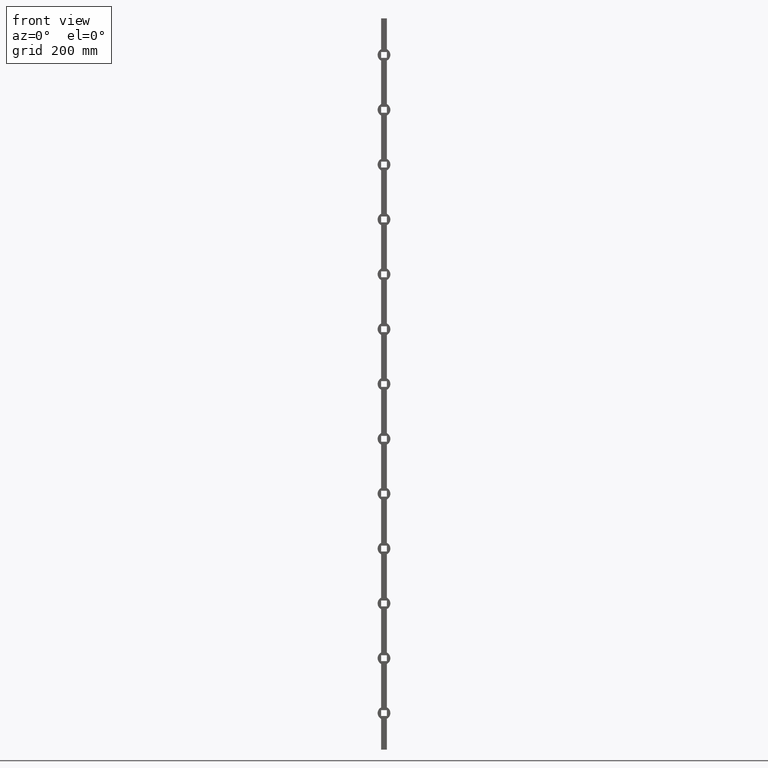
[diagram: clean part render]
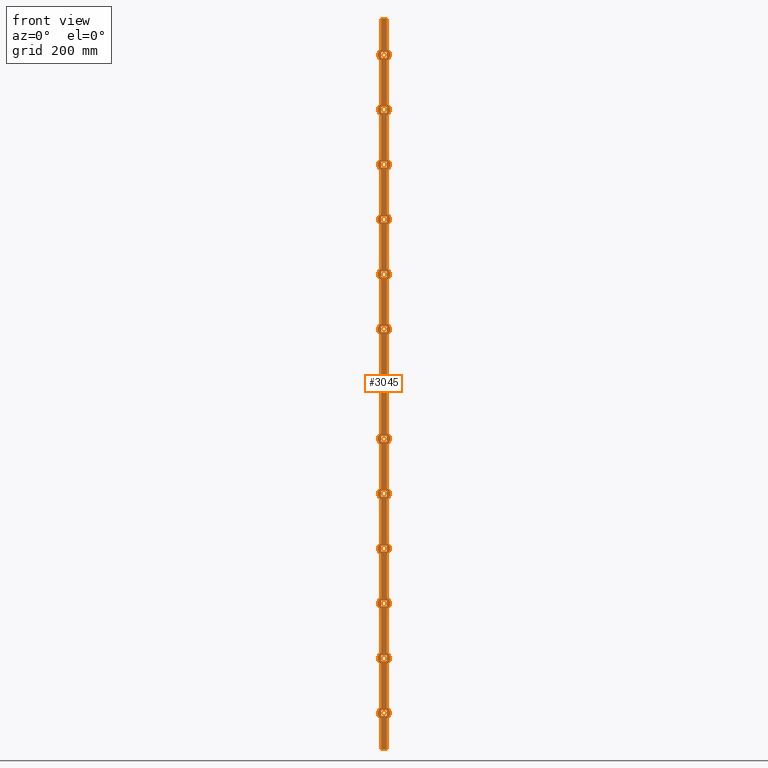
[diagram: same view with one face highlighted and labeled with its STEP entity id]
A machine part, front view. The second image highlights one B-rep face of the part: STEP entity #3045.
In plain terms, the highlighted planar face has unit normal (0, 1, 0).
Its self-contained STEP definition (entity closure, byte-faithful):
#4 = EDGE_CURVE ( 'NONE', #4546, #7853, #1683, .T. ) ;
#47 = ORIENTED_EDGE ( 'NONE', *, *, #12634, .T. ) ;
#59 = EDGE_CURVE ( 'NONE', #3899, #5017, #10373, .T. ) ;
#64 = DIRECTION ( 'NONE',  ( 1.084202172485503448E-16, 0.000000000000000000, 1.000000000000000000 ) ) ;
#71 = VERTEX_POINT ( 'NONE', #8379 ) ;
#90 = EDGE_CURVE ( 'NONE', #1544, #13463, #13175, .T. ) ;
#93 = CARTESIAN_POINT ( 'NONE',  ( -8.000000000000008882, -8.000000000000003553, 608.0000000000001137 ) ) ;
#96 = CARTESIAN_POINT ( 'NONE',  ( 0.000000000000000000, -8.000000000000000000, -299.9999999999999432 ) ) ;
#97 = CARTESIAN_POINT ( 'NONE',  ( 8.000000000000003553, -8.000000000000003553, -7.999999999999896083 ) ) ;
#101 = DIRECTION ( 'NONE',  ( 0.000000000000000000, 0.000000000000000000, 1.000000000000000000 ) ) ;
#132 = ORIENTED_EDGE ( 'NONE', *, *, #3472, .T. ) ;
#137 = CIRCLE ( 'NONE', #914, 17.49999999999996092 ) ;
#148 = VECTOR ( 'NONE', #13533, 1000.000000000000000 ) ;
#167 = CARTESIAN_POINT ( 'NONE',  ( 8.000000000000007105, -8.000000000000003553, -741.9999999999998863 ) ) ;
#214 = AXIS2_PLACEMENT_3D ( 'NONE', #10044, #12257, #8094 ) ;
#225 = ORIENTED_EDGE ( 'NONE', *, *, #11086, .T. ) ;
#227 = EDGE_CURVE ( 'NONE', #5780, #10781, #10048, .T. ) ;
#242 = EDGE_CURVE ( 'NONE', #8406, #5963, #7232, .T. ) ;
#244 = CARTESIAN_POINT ( 'NONE',  ( 8.000000000000003553, -8.000000000000003553, 592.0000000000001137 ) ) ;
#251 = CARTESIAN_POINT ( 'NONE',  ( -8.000000000000010658, -8.000000000000003553, -7.999999999999896083 ) ) ;
#284 = VECTOR ( 'NONE', #4076, 1000.000000000000000 ) ;
#296 = CARTESIAN_POINT ( 'NONE',  ( 8.000000000000007105, -8.000000000000003553, 308.0000000000000568 ) ) ;
#304 = ORIENTED_EDGE ( 'NONE', *, *, #4780, .T. ) ;
#319 = EDGE_CURVE ( 'NONE', #6344, #12328, #9376, .T. ) ;
#328 = LINE ( 'NONE', #97, #7367 ) ;
#345 = CARTESIAN_POINT ( 'NONE',  ( -7.999999999999998224, -8.000000000000003553, 1000.000000000000000 ) ) ;
#360 = EDGE_CURVE ( 'NONE', #8766, #7352, #6915, .T. ) ;
#366 = VERTEX_POINT ( 'NONE', #8157 ) ;
#404 = ORIENTED_EDGE ( 'NONE', *, *, #6013, .F. ) ;
#426 = AXIS2_PLACEMENT_3D ( 'NONE', #9715, #1323, #8682 ) ;
#428 = VERTEX_POINT ( 'NONE', #11340 ) ;
#446 = CARTESIAN_POINT ( 'NONE',  ( -7.999999999999998224, -8.000000000000003553, 884.4356175837266392 ) ) ;
#461 = EDGE_CURVE ( 'NONE', #7881, #2728, #11826, .T. ) ;
#471 = AXIS2_PLACEMENT_3D ( 'NONE', #12557, #9363, #3188 ) ;
#474 = LINE ( 'NONE', #7366, #6390 ) ;
#476 = CARTESIAN_POINT ( 'NONE',  ( 8.000000000000000000, -8.000000000000003553, 765.5643824162733608 ) ) ;
#484 = VECTOR ( 'NONE', #4175, 1000.000000000000000 ) ;
#490 = FACE_BOUND ( 'NONE', #11643, .T. ) ;
#492 = CARTESIAN_POINT ( 'NONE',  ( -7.999999999999998224, -8.000000000000003553, 1000.000000000000000 ) ) ;
#496 = AXIS2_PLACEMENT_3D ( 'NONE', #5354, #2179, #12843 ) ;
#518 = EDGE_CURVE ( 'NONE', #11570, #13429, #1005, .T. ) ;
#521 = LINE ( 'NONE', #3277, #13491 ) ;
#527 = CARTESIAN_POINT ( 'NONE',  ( -8.000000000000010658, -8.000000000000003553, 292.0000000000000568 ) ) ;
#529 = VECTOR ( 'NONE', #9278, 1000.000000000000000 ) ;
#559 = DIRECTION ( 'NONE',  ( 1.000000000000000000, 0.000000000000000000, 0.000000000000000000 ) ) ;
#561 = ORIENTED_EDGE ( 'NONE', *, *, #9138, .T. ) ;
#575 = VERTEX_POINT ( 'NONE', #11511 ) ;
#576 = AXIS2_PLACEMENT_3D ( 'NONE', #96, #2059, #10582 ) ;
#585 = VERTEX_POINT ( 'NONE', #7327 ) ;
#587 = EDGE_CURVE ( 'NONE', #5646, #9602, #11350, .T. ) ;
#593 = DIRECTION ( 'NONE',  ( 0.000000000000000000, 1.000000000000000000, 0.000000000000000000 ) ) ;
#594 = VECTOR ( 'NONE', #2310, 1000.000000000000000 ) ;
#605 = EDGE_CURVE ( 'NONE', #4275, #1284, #5806, .T. ) ;
#622 = CIRCLE ( 'NONE', #8818, 17.50000000000000711 ) ;
#623 = VERTEX_POINT ( 'NONE', #4414 ) ;
#624 = EDGE_LOOP ( 'NONE', ( #3945, #10036, #10308, #12221 ) ) ;
#645 = DIRECTION ( 'NONE',  ( 1.084202172485503448E-16, 0.000000000000000000, 1.000000000000000000 ) ) ;
#653 = VERTEX_POINT ( 'NONE', #167 ) ;
#656 = VECTOR ( 'NONE', #12724, 1000.000000000000000 ) ;
#717 = VERTEX_POINT ( 'NONE', #6470 ) ;
#749 = ORIENTED_EDGE ( 'NONE', *, *, #1616, .T. ) ;
#756 = CARTESIAN_POINT ( 'NONE',  ( -8.000000000000010658, -8.000000000000003553, 742.0000000000000000 ) ) ;
#759 = ORIENTED_EDGE ( 'NONE', *, *, #12678, .F. ) ;
#764 = CIRCLE ( 'NONE', #3390, 17.50000000000001421 ) ;
#776 = VECTOR ( 'NONE', #2389, 1000.000000000000000 ) ;
#801 = DIRECTION ( 'NONE',  ( 0.000000000000000000, 1.000000000000000000, 0.000000000000000000 ) ) ;
#814 = CIRCLE ( 'NONE', #9983, 17.50000000000000711 ) ;
#827 = EDGE_CURVE ( 'NONE', #7853, #12653, #11995, .T. ) ;
#834 = VERTEX_POINT ( 'NONE', #1425 ) ;
#840 = AXIS2_PLACEMENT_3D ( 'NONE', #2917, #9242, #8307 ) ;
#845 = CARTESIAN_POINT ( 'NONE',  ( -7.999999999999998224, -8.000000000000003553, 1000.000000000000000 ) ) ;
#849 = CARTESIAN_POINT ( 'NONE',  ( 8.000000000000000000, -8.000000000000003553, 1000.000000000000000 ) ) ;
#858 = CARTESIAN_POINT ( 'NONE',  ( -8.000000000000039080, -8.000000000000000000, 615.5643824162734745 ) ) ;
#861 = VERTEX_POINT ( 'NONE', #10865 ) ;
#877 = ORIENTED_EDGE ( 'NONE', *, *, #8591, .T. ) ;
#879 = DIRECTION ( 'NONE',  ( 0.000000000000000000, 0.000000000000000000, 1.000000000000000000 ) ) ;
#880 = DIRECTION ( 'NONE',  ( 1.084202172485503448E-16, 0.000000000000000000, 1.000000000000000000 ) ) ;
#914 = AXIS2_PLACEMENT_3D ( 'NONE', #3773, #593, #2626 ) ;
#918 = CARTESIAN_POINT ( 'NONE',  ( -8.000000000000010658, -8.000000000000003553, -608.0000000000000000 ) ) ;
#942 = CARTESIAN_POINT ( 'NONE',  ( -8.000000000000010658, -8.000000000000003553, -907.9999999999997726 ) ) ;
#955 = CARTESIAN_POINT ( 'NONE',  ( 8.000000000000040856, -8.000000000000000000, 584.4356175837267529 ) ) ;
#970 = LINE ( 'NONE', #4511, #7860 ) ;
#979 = VECTOR ( 'NONE', #3177, 1000.000000000000000 ) ;
#982 = VECTOR ( 'NONE', #6081, 1000.000000000000000 ) ;
#1005 = CIRCLE ( 'NONE', #471, 17.50000000000001421 ) ;
#1007 = CARTESIAN_POINT ( 'NONE',  ( 8.000000000000007105, -8.000000000000003553, 8.000000000000117240 ) ) ;
#1008 = ORIENTED_EDGE ( 'NONE', *, *, #10295, .T. ) ;
#1010 = DIRECTION ( 'NONE',  ( 1.084202172485503448E-16, 0.000000000000000000, 1.000000000000000000 ) ) ;
#1036 = ORIENTED_EDGE ( 'NONE', *, *, #4881, .T. ) ;
#1071 = EDGE_CURVE ( 'NONE', #4468, #12454, #8867, .T. ) ;
#1147 = LINE ( 'NONE', #9656, #3614 ) ;
#1161 = CARTESIAN_POINT ( 'NONE',  ( 8.000000000000003553, -8.000000000000003553, -158.0000000000000284 ) ) ;
#1162 = VECTOR ( 'NONE', #9220, 1000.000000000000000 ) ;
#1168 = EDGE_CURVE ( 'NONE', #12440, #653, #1326, .T. ) ;
#1186 = CIRCLE ( 'NONE', #1909, 17.50000000000001421 ) ;
#1192 = DIRECTION ( 'NONE',  ( -0.000000000000000000, -0.000000000000000000, -1.000000000000000000 ) ) ;
#1196 = VERTEX_POINT ( 'NONE', #8545 ) ;
#1221 = DIRECTION ( 'NONE',  ( -0.000000000000000000, -0.000000000000000000, -1.000000000000000000 ) ) ;
#1234 = DIRECTION ( 'NONE',  ( -1.000000000000000000, -0.000000000000000000, -0.000000000000000000 ) ) ;
#1277 = AXIS2_PLACEMENT_3D ( 'NONE', #2498, #1571, #3687 ) ;
#1284 = VERTEX_POINT ( 'NONE', #6666 ) ;
#1287 = DIRECTION ( 'NONE',  ( -0.000000000000000000, -0.000000000000000000, -1.000000000000000000 ) ) ;
#1294 = ORIENTED_EDGE ( 'NONE', *, *, #11879, .T. ) ;
#1298 = EDGE_CURVE ( 'NONE', #7740, #9736, #3459, .T. ) ;
#1305 = DIRECTION ( 'NONE',  ( -0.000000000000000000, -0.000000000000000000, -1.000000000000000000 ) ) ;
#1323 = DIRECTION ( 'NONE',  ( 0.000000000000000000, 1.000000000000000000, 0.000000000000000000 ) ) ;
#1326 = LINE ( 'NONE', #8311, #484 ) ;
#1327 = ORIENTED_EDGE ( 'NONE', *, *, #4901, .F. ) ;
#1335 = DIRECTION ( 'NONE',  ( 0.000000000000000000, 0.000000000000000000, 1.000000000000000000 ) ) ;
#1340 = CARTESIAN_POINT ( 'NONE',  ( -8.000000000000010658, -8.000000000000003553, -158.0000000000000284 ) ) ;
#1347 = DIRECTION ( 'NONE',  ( 1.000000000000000000, 0.000000000000000000, 0.000000000000000000 ) ) ;
#1354 = EDGE_CURVE ( 'NONE', #5743, #7881, #4128, .T. ) ;
#1361 = CARTESIAN_POINT ( 'NONE',  ( 8.000000000000007105, -8.000000000000003553, 608.0000000000001137 ) ) ;
#1381 = CARTESIAN_POINT ( 'NONE',  ( 0.000000000000000000, -8.000000000000000000, 300.0000000000000568 ) ) ;
#1423 = VERTEX_POINT ( 'NONE', #11304 ) ;
#1425 = CARTESIAN_POINT ( 'NONE',  ( -8.000000000000010658, -8.000000000000003553, -457.9999999999997158 ) ) ;
#1431 = CARTESIAN_POINT ( 'NONE',  ( -7.999999999999998224, -8.000000000000003553, -615.5643824162733608 ) ) ;
#1446 = EDGE_CURVE ( 'NONE', #1959, #10694, #814, .T. ) ;
#1458 = LINE ( 'NONE', #2191, #8820 ) ;
#1477 = LINE ( 'NONE', #845, #982 ) ;
#1480 = LINE ( 'NONE', #4094, #9513 ) ;
#1484 = LINE ( 'NONE', #7444, #8034 ) ;
#1544 = VERTEX_POINT ( 'NONE', #3020 ) ;
#1563 = CARTESIAN_POINT ( 'NONE',  ( 8.000000000000000000, -8.000000000000003553, 465.5643824162734745 ) ) ;
#1564 = ORIENTED_EDGE ( 'NONE', *, *, #13181, .T. ) ;
#1571 = DIRECTION ( 'NONE',  ( 0.000000000000000000, 1.000000000000000000, 0.000000000000000000 ) ) ;
#1578 = ORIENTED_EDGE ( 'NONE', *, *, #4616, .T. ) ;
#1616 = EDGE_CURVE ( 'NONE', #5017, #1544, #1484, .T. ) ;
#1624 = CARTESIAN_POINT ( 'NONE',  ( -8.000000000000008882, -8.000000000000003553, -592.0000000000000000 ) ) ;
#1683 = LINE ( 'NONE', #4004, #3330 ) ;
#1714 = EDGE_CURVE ( 'NONE', #585, #13283, #11793, .T. ) ;
#1718 = CARTESIAN_POINT ( 'NONE',  ( -8.000000000000008882, -8.000000000000003553, 908.0000000000000000 ) ) ;
#1743 = CARTESIAN_POINT ( 'NONE',  ( 8.000000000000003553, -8.000000000000003553, 142.0000000000000284 ) ) ;
#1762 = EDGE_CURVE ( 'NONE', #10790, #12924, #2299, .T. ) ;
#1809 = LINE ( 'NONE', #11059, #7524 ) ;
#1822 = DIRECTION ( 'NONE',  ( -0.000000000000000000, -0.000000000000000000, -1.000000000000000000 ) ) ;
#1827 = LINE ( 'NONE', #5027, #6739 ) ;
#1830 = ORIENTED_EDGE ( 'NONE', *, *, #1168, .T. ) ;
#1844 = VERTEX_POINT ( 'NONE', #2307 ) ;
#1849 = EDGE_CURVE ( 'NONE', #575, #7355, #13615, .T. ) ;
#1854 = EDGE_CURVE ( 'NONE', #3124, #11424, #970, .T. ) ;
#1855 = VECTOR ( 'NONE', #3325, 1000.000000000000000 ) ;
#1857 = CARTESIAN_POINT ( 'NONE',  ( -7.999999999999998224, -8.000000000000003553, 1000.000000000000000 ) ) ;
#1873 = ORIENTED_EDGE ( 'NONE', *, *, #7184, .F. ) ;
#1909 = AXIS2_PLACEMENT_3D ( 'NONE', #11222, #801, #1911 ) ;
#1911 = DIRECTION ( 'NONE',  ( 0.000000000000000000, 0.000000000000000000, 1.000000000000000000 ) ) ;
#1920 = VECTOR ( 'NONE', #10770, 1000.000000000000000 ) ;
#1923 = DIRECTION ( 'NONE',  ( 0.000000000000000000, 0.000000000000000000, 1.000000000000000000 ) ) ;
#1934 = DIRECTION ( 'NONE',  ( 0.000000000000000000, 1.000000000000000000, 0.000000000000000000 ) ) ;
#1948 = ORIENTED_EDGE ( 'NONE', *, *, #13368, .T. ) ;
#1959 = VERTEX_POINT ( 'NONE', #4811 ) ;
#1962 = CARTESIAN_POINT ( 'NONE',  ( -7.999999999999998224, -8.000000000000003553, 1000.000000000000000 ) ) ;
#1965 = CARTESIAN_POINT ( 'NONE',  ( -8.000000000000008882, -8.000000000000003553, 458.0000000000000568 ) ) ;
#2005 = DIRECTION ( 'NONE',  ( 0.000000000000000000, 1.000000000000000000, 0.000000000000000000 ) ) ;
#2016 = DIRECTION ( 'NONE',  ( -0.000000000000000000, -0.000000000000000000, -1.000000000000000000 ) ) ;
#2030 = CARTESIAN_POINT ( 'NONE',  ( -8.000000000000010658, -8.000000000000003553, 292.0000000000000568 ) ) ;
#2053 = EDGE_CURVE ( 'NONE', #11823, #4468, #11961, .T. ) ;
#2059 = DIRECTION ( 'NONE',  ( 0.000000000000000000, 1.000000000000000000, 0.000000000000000000 ) ) ;
#2094 = ORIENTED_EDGE ( 'NONE', *, *, #461, .F. ) ;
#2102 = VERTEX_POINT ( 'NONE', #9599 ) ;
#2118 = DIRECTION ( 'NONE',  ( -0.000000000000000000, -0.000000000000000000, -1.000000000000000000 ) ) ;
#2138 = VECTOR ( 'NONE', #3660, 1000.000000000000000 ) ;
#2146 = CARTESIAN_POINT ( 'NONE',  ( 8.000000000000003553, -8.000000000000003553, -608.0000000000000000 ) ) ;
#2150 = FACE_BOUND ( 'NONE', #624, .T. ) ;
#2174 = VERTEX_POINT ( 'NONE', #3275 ) ;
#2179 = DIRECTION ( 'NONE',  ( 0.000000000000000000, 1.000000000000000000, 0.000000000000000000 ) ) ;
#2190 = ORIENTED_EDGE ( 'NONE', *, *, #8418, .F. ) ;
#2191 = CARTESIAN_POINT ( 'NONE',  ( -8.000000000000010658, -8.000000000000003553, -608.0000000000000000 ) ) ;
#2211 = CARTESIAN_POINT ( 'NONE',  ( 0.000000000000000000, -8.000000000000000000, 600.0000000000001137 ) ) ;
#2220 = CARTESIAN_POINT ( 'NONE',  ( 8.000000000000003553, -8.000000000000003553, -7.999999999999896083 ) ) ;
#2230 = ORIENTED_EDGE ( 'NONE', *, *, #8002, .F. ) ;
#2262 = DIRECTION ( 'NONE',  ( 0.000000000000000000, 1.000000000000000000, 0.000000000000000000 ) ) ;
#2271 = ORIENTED_EDGE ( 'NONE', *, *, #4326, .T. ) ;
#2284 = CARTESIAN_POINT ( 'NONE',  ( 8.000000000000003553, -8.000000000000003553, 892.0000000000000000 ) ) ;
#2299 = LINE ( 'NONE', #3265, #10649 ) ;
#2307 = CARTESIAN_POINT ( 'NONE',  ( 8.000000000000000000, -8.000000000000003553, 15.56438241627350116 ) ) ;
#2310 = DIRECTION ( 'NONE',  ( -0.000000000000000000, -0.000000000000000000, -1.000000000000000000 ) ) ;
#2327 = LINE ( 'NONE', #3655, #4463 ) ;
#2332 = DIRECTION ( 'NONE',  ( -0.000000000000000000, -0.000000000000000000, -1.000000000000000000 ) ) ;
#2373 = CARTESIAN_POINT ( 'NONE',  ( 8.000000000000000000, -8.000000000000003553, 1000.000000000000000 ) ) ;
#2380 = DIRECTION ( 'NONE',  ( 0.000000000000000000, 0.000000000000000000, 1.000000000000000000 ) ) ;
#2386 = CARTESIAN_POINT ( 'NONE',  ( -7.999999999999998224, -8.000000000000003553, 134.4356175837266392 ) ) ;
#2389 = DIRECTION ( 'NONE',  ( -1.000000000000000000, -0.000000000000000000, -0.000000000000000000 ) ) ;
#2424 = ORIENTED_EDGE ( 'NONE', *, *, #13453, .F. ) ;
#2459 = ORIENTED_EDGE ( 'NONE', *, *, #10103, .F. ) ;
#2462 = EDGE_CURVE ( 'NONE', #4911, #7740, #11532, .T. ) ;
#2473 = AXIS2_PLACEMENT_3D ( 'NONE', #11217, #9099, #6854 ) ;
#2477 = FACE_BOUND ( 'NONE', #5171, .T. ) ;
#2498 = CARTESIAN_POINT ( 'NONE',  ( 0.000000000000000000, -8.000000000000000000, -600.0000000000000000 ) ) ;
#2500 = VECTOR ( 'NONE', #10075, 1000.000000000000000 ) ;
#2512 = EDGE_CURVE ( 'NONE', #9758, #6344, #12350, .T. ) ;
#2557 = VERTEX_POINT ( 'NONE', #12993 ) ;
#2580 = CIRCLE ( 'NONE', #6198, 17.49999999999996092 ) ;
#2583 = VERTEX_POINT ( 'NONE', #1857 ) ;
#2593 = CARTESIAN_POINT ( 'NONE',  ( -7.999999999999998224, -8.000000000000003553, -915.5643824162731335 ) ) ;
#2626 = DIRECTION ( 'NONE',  ( 0.000000000000000000, 0.000000000000000000, 1.000000000000000000 ) ) ;
#2628 = VERTEX_POINT ( 'NONE', #6069 ) ;
#2641 = VECTOR ( 'NONE', #559, 1000.000000000000000 ) ;
#2642 = ORIENTED_EDGE ( 'NONE', *, *, #8188, .T. ) ;
#2648 = DIRECTION ( 'NONE',  ( -0.000000000000000000, -0.000000000000000000, -1.000000000000000000 ) ) ;
#2654 = VECTOR ( 'NONE', #8302, 1000.000000000000000 ) ;
#2670 = DIRECTION ( 'NONE',  ( -2.168404344971006896E-16, -0.000000000000000000, -1.000000000000000000 ) ) ;
#2728 = VERTEX_POINT ( 'NONE', #5202 ) ;
#2731 = CARTESIAN_POINT ( 'NONE',  ( 0.000000000000000000, -8.000000000000000000, -150.0000000000000284 ) ) ;
#2734 = VERTEX_POINT ( 'NONE', #6079 ) ;
#2767 = DIRECTION ( 'NONE',  ( -1.000000000000000000, -0.000000000000000000, -0.000000000000000000 ) ) ;
#2776 = VERTEX_POINT ( 'NONE', #13376 ) ;
#2799 = LINE ( 'NONE', #12765, #8684 ) ;
#2815 = VECTOR ( 'NONE', #4502, 1000.000000000000000 ) ;
#2838 = VERTEX_POINT ( 'NONE', #6979 ) ;
#2871 = CARTESIAN_POINT ( 'NONE',  ( 8.000000000000007105, -8.000000000000003553, -441.9999999999998295 ) ) ;
#2879 = CARTESIAN_POINT ( 'NONE',  ( 7.999999999999998224, -8.000000000000000000, -165.5643824162734177 ) ) ;
#2880 = DIRECTION ( 'NONE',  ( 0.000000000000000000, 0.000000000000000000, 1.000000000000000000 ) ) ;
#2894 = DIRECTION ( 'NONE',  ( -1.000000000000000000, -0.000000000000000000, -0.000000000000000000 ) ) ;
#2907 = ORIENTED_EDGE ( 'NONE', *, *, #6506, .T. ) ;
#2917 = CARTESIAN_POINT ( 'NONE',  ( 0.000000000000000000, -8.000000000000000000, -749.9999999999998863 ) ) ;
#2930 = EDGE_CURVE ( 'NONE', #861, #12472, #9522, .T. ) ;
#2933 = CARTESIAN_POINT ( 'NONE',  ( -8.000000000000010658, -8.000000000000003553, -307.9999999999999432 ) ) ;
#2949 = DIRECTION ( 'NONE',  ( 0.000000000000000000, 0.000000000000000000, 1.000000000000000000 ) ) ;
#2971 = CIRCLE ( 'NONE', #426, 17.49999999999996092 ) ;
#2984 = VECTOR ( 'NONE', #2118, 1000.000000000000000 ) ;
#2988 = CARTESIAN_POINT ( 'NONE',  ( 0.000000000000000000, -8.000000000000000000, 900.0000000000000000 ) ) ;
#2994 = EDGE_CURVE ( 'NONE', #7355, #4058, #12475, .T. ) ;
#3020 = CARTESIAN_POINT ( 'NONE',  ( 8.000000000000007105, -8.000000000000003553, -291.9999999999999432 ) ) ;
#3024 = CARTESIAN_POINT ( 'NONE',  ( 8.000000000000003553, -8.000000000000003553, -757.9999999999998863 ) ) ;
#3045 = ADVANCED_FACE ( 'NONE', ( #6085, #7056, #10831, #11640, #2150, #8858, #2477, #10507, #490, #7698, #4963, #11318, #8520, #5778 ), #10561, .F. ) ;
#3049 = CARTESIAN_POINT ( 'NONE',  ( -7.999999999999998224, -8.000000000000003553, -765.5643824162732471 ) ) ;
#3101 = VECTOR ( 'NONE', #8098, 1000.000000000000000 ) ;
#3102 = CARTESIAN_POINT ( 'NONE',  ( -7.999999999999998224, -8.000000000000003553, 1000.000000000000000 ) ) ;
#3107 = CARTESIAN_POINT ( 'NONE',  ( 8.000000000000000000, -8.000000000000003553, 1000.000000000000000 ) ) ;
#3123 = EDGE_CURVE ( 'NONE', #1423, #861, #137, .T. ) ;
#3124 = VERTEX_POINT ( 'NONE', #1431 ) ;
#3137 = LINE ( 'NONE', #9776, #10509 ) ;
#3172 = ORIENTED_EDGE ( 'NONE', *, *, #8703, .T. ) ;
#3177 = DIRECTION ( 'NONE',  ( -0.000000000000000000, -0.000000000000000000, -1.000000000000000000 ) ) ;
#3188 = DIRECTION ( 'NONE',  ( 0.000000000000000000, 0.000000000000000000, 1.000000000000000000 ) ) ;
#3197 = EDGE_CURVE ( 'NONE', #4564, #5810, #1809, .T. ) ;
#3211 = CARTESIAN_POINT ( 'NONE',  ( 8.000000000000000000, -8.000000000000003553, 1000.000000000000000 ) ) ;
#3239 = CARTESIAN_POINT ( 'NONE',  ( -7.999999999999998224, -8.000000000000000000, 165.5643824162734177 ) ) ;
#3240 = ORIENTED_EDGE ( 'NONE', *, *, #5205, .T. ) ;
#3242 = CARTESIAN_POINT ( 'NONE',  ( -8.000000000000010658, -8.000000000000003553, -307.9999999999998295 ) ) ;
#3253 = ORIENTED_EDGE ( 'NONE', *, *, #9424, .F. ) ;
#3265 = CARTESIAN_POINT ( 'NONE',  ( 8.000000000000000000, -8.000000000000003553, 1000.000000000000000 ) ) ;
#3271 = VERTEX_POINT ( 'NONE', #6020 ) ;
#3273 = EDGE_CURVE ( 'NONE', #13178, #6223, #7867, .T. ) ;
#3275 = CARTESIAN_POINT ( 'NONE',  ( 7.999999999999998224, -8.000000000000000000, 134.4356175837266392 ) ) ;
#3277 = CARTESIAN_POINT ( 'NONE',  ( -8.000000000000008882, -8.000000000000003553, -891.9999999999997726 ) ) ;
#3292 = CARTESIAN_POINT ( 'NONE',  ( 8.000000000000000000, -8.000000000000003553, 915.5643824162733608 ) ) ;
#3325 = DIRECTION ( 'NONE',  ( -1.000000000000000000, -0.000000000000000000, -0.000000000000000000 ) ) ;
#3330 = VECTOR ( 'NONE', #3956, 1000.000000000000000 ) ;
#3338 = VECTOR ( 'NONE', #1221, 1000.000000000000000 ) ;
#3390 = AXIS2_PLACEMENT_3D ( 'NONE', #6985, #3925, #4952 ) ;
#3393 = ORIENTED_EDGE ( 'NONE', *, *, #10273, .F. ) ;
#3412 = VECTOR ( 'NONE', #64, 1000.000000000000000 ) ;
#3425 = EDGE_LOOP ( 'NONE', ( #7156, #4979, #6056, #10155 ) ) ;
#3430 = ORIENTED_EDGE ( 'NONE', *, *, #12473, .T. ) ;
#3444 = DIRECTION ( 'NONE',  ( -1.000000000000000000, -0.000000000000000000, -0.000000000000000000 ) ) ;
#3457 = VECTOR ( 'NONE', #2016, 1000.000000000000000 ) ;
#3459 = CIRCLE ( 'NONE', #1277, 17.49999999999996092 ) ;
#3471 = VECTOR ( 'NONE', #645, 1000.000000000000000 ) ;
#3472 = EDGE_CURVE ( 'NONE', #6004, #3271, #6889, .T. ) ;
#3576 = CARTESIAN_POINT ( 'NONE',  ( 8.000000000000000000, -8.000000000000003553, 615.5643824162734745 ) ) ;
#3597 = CIRCLE ( 'NONE', #840, 17.49999999999996092 ) ;
#3609 = CARTESIAN_POINT ( 'NONE',  ( 8.000000000000003553, -8.000000000000003553, -307.9999999999999432 ) ) ;
#3614 = VECTOR ( 'NONE', #6533, 1000.000000000000000 ) ;
#3634 = VERTEX_POINT ( 'NONE', #8742 ) ;
#3646 = EDGE_CURVE ( 'NONE', #653, #13178, #3943, .T. ) ;
#3653 = DIRECTION ( 'NONE',  ( -0.000000000000000000, -0.000000000000000000, -1.000000000000000000 ) ) ;
#3655 = CARTESIAN_POINT ( 'NONE',  ( -7.999999999999998224, -8.000000000000003553, 1000.000000000000000 ) ) ;
#3660 = DIRECTION ( 'NONE',  ( 1.000000000000000000, 0.000000000000000000, 0.000000000000000000 ) ) ;
#3687 = DIRECTION ( 'NONE',  ( 0.000000000000000000, 0.000000000000000000, 1.000000000000000000 ) ) ;
#3740 = VERTEX_POINT ( 'NONE', #11180 ) ;
#3763 = LINE ( 'NONE', #2146, #11132 ) ;
#3773 = CARTESIAN_POINT ( 'NONE',  ( 0.000000000000000000, -8.000000000000000000, -749.9999999999998863 ) ) ;
#3793 = VERTEX_POINT ( 'NONE', #5097 ) ;
#3822 = EDGE_CURVE ( 'NONE', #2628, #12890, #5907, .T. ) ;
#3834 = EDGE_CURVE ( 'NONE', #2583, #585, #7851, .T. ) ;
#3839 = ORIENTED_EDGE ( 'NONE', *, *, #4145, .T. ) ;
#3866 = EDGE_CURVE ( 'NONE', #12363, #5780, #6539, .T. ) ;
#3877 = EDGE_CURVE ( 'NONE', #3740, #623, #3763, .T. ) ;
#3889 = CARTESIAN_POINT ( 'NONE',  ( -8.000000000000039080, -8.000000000000000000, -884.4356175837264118 ) ) ;
#3899 = VERTEX_POINT ( 'NONE', #3242 ) ;
#3907 = ORIENTED_EDGE ( 'NONE', *, *, #9612, .F. ) ;
#3916 = EDGE_CURVE ( 'NONE', #5810, #2102, #474, .T. ) ;
#3925 = DIRECTION ( 'NONE',  ( 0.000000000000000000, 1.000000000000000000, 0.000000000000000000 ) ) ;
#3933 = CARTESIAN_POINT ( 'NONE',  ( 8.000000000000000000, -8.000000000000003553, 1000.000000000000000 ) ) ;
#3943 = LINE ( 'NONE', #4500, #11458 ) ;
#3945 = ORIENTED_EDGE ( 'NONE', *, *, #6629, .T. ) ;
#3956 = DIRECTION ( 'NONE',  ( 1.000000000000000000, 0.000000000000000000, 0.000000000000000000 ) ) ;
#3958 = VECTOR ( 'NONE', #9308, 1000.000000000000000 ) ;
#3975 = CIRCLE ( 'NONE', #5880, 17.49999999999996092 ) ;
#4004 = CARTESIAN_POINT ( 'NONE',  ( -8.000000000000008882, -8.000000000000003553, 908.0000000000000000 ) ) ;
#4013 = AXIS2_PLACEMENT_3D ( 'NONE', #6555, #9631, #8644 ) ;
#4016 = CARTESIAN_POINT ( 'NONE',  ( -8.000000000000010658, -8.000000000000003553, -907.9999999999997726 ) ) ;
#4020 = CARTESIAN_POINT ( 'NONE',  ( 8.000000000000000000, -8.000000000000003553, 1000.000000000000000 ) ) ;
#4042 = CARTESIAN_POINT ( 'NONE',  ( -7.999999999999998224, -8.000000000000003553, 1000.000000000000000 ) ) ;
#4049 = DIRECTION ( 'NONE',  ( 0.000000000000000000, 1.000000000000000000, 0.000000000000000000 ) ) ;
#4058 = VERTEX_POINT ( 'NONE', #8956 ) ;
#4076 = DIRECTION ( 'NONE',  ( -2.168404344971006896E-16, -0.000000000000000000, -1.000000000000000000 ) ) ;
#4094 = CARTESIAN_POINT ( 'NONE',  ( 8.000000000000003553, -8.000000000000003553, -907.9999999999997726 ) ) ;
#4103 = VERTEX_POINT ( 'NONE', #3889 ) ;
#4125 = DIRECTION ( 'NONE',  ( 0.000000000000000000, 0.000000000000000000, 1.000000000000000000 ) ) ;
#4128 = CIRCLE ( 'NONE', #12343, 17.50000000000001421 ) ;
#4134 = LINE ( 'NONE', #4296, #2654 ) ;
#4138 = DIRECTION ( 'NONE',  ( 1.000000000000000000, 0.000000000000000000, 0.000000000000000000 ) ) ;
#4145 = EDGE_CURVE ( 'NONE', #834, #575, #5251, .T. ) ;
#4167 = EDGE_CURVE ( 'NONE', #13654, #11424, #3597, .T. ) ;
#4175 = DIRECTION ( 'NONE',  ( 1.000000000000000000, 0.000000000000000000, 0.000000000000000000 ) ) ;
#4178 = DIRECTION ( 'NONE',  ( -2.168404344971006896E-16, -0.000000000000000000, -1.000000000000000000 ) ) ;
#4183 = DIRECTION ( 'NONE',  ( 1.000000000000000000, 0.000000000000000000, 0.000000000000000000 ) ) ;
#4209 = VERTEX_POINT ( 'NONE', #12434 ) ;
#4213 = CARTESIAN_POINT ( 'NONE',  ( 0.000000000000000000, -8.000000000000000000, 600.0000000000001137 ) ) ;
#4214 = CARTESIAN_POINT ( 'NONE',  ( 0.000000000000000000, -8.000000000000000000, -449.9999999999998295 ) ) ;
#4239 = CARTESIAN_POINT ( 'NONE',  ( 8.000000000000000000, -8.000000000000003553, 1000.000000000000000 ) ) ;
#4248 = CARTESIAN_POINT ( 'NONE',  ( 8.000000000000040856, -8.000000000000000000, -615.5643824162733608 ) ) ;
#4275 = VERTEX_POINT ( 'NONE', #11561 ) ;
#4281 = VECTOR ( 'NONE', #13165, 1000.000000000000000 ) ;
#4296 = CARTESIAN_POINT ( 'NONE',  ( 8.000000000000000000, -8.000000000000003553, 1000.000000000000000 ) ) ;
#4300 = VERTEX_POINT ( 'NONE', #12533 ) ;
#4310 = LINE ( 'NONE', #11069, #2500 ) ;
#4326 = EDGE_CURVE ( 'NONE', #623, #11085, #1458, .T. ) ;
#4329 = DIRECTION ( 'NONE',  ( 0.000000000000000000, 1.000000000000000000, 0.000000000000000000 ) ) ;
#4348 = CARTESIAN_POINT ( 'NONE',  ( 7.999999999999998224, -8.000000000000000000, 434.4356175837266960 ) ) ;
#4375 = ORIENTED_EDGE ( 'NONE', *, *, #2994, .T. ) ;
#4385 = DIRECTION ( 'NONE',  ( -1.000000000000000000, -0.000000000000000000, -0.000000000000000000 ) ) ;
#4405 = ORIENTED_EDGE ( 'NONE', *, *, #13278, .T. ) ;
#4414 = CARTESIAN_POINT ( 'NONE',  ( 8.000000000000003553, -8.000000000000003553, -608.0000000000000000 ) ) ;
#4442 = ORIENTED_EDGE ( 'NONE', *, *, #90, .T. ) ;
#4463 = VECTOR ( 'NONE', #4624, 1000.000000000000000 ) ;
#4467 = VECTOR ( 'NONE', #6073, 1000.000000000000000 ) ;
#4468 = VERTEX_POINT ( 'NONE', #4481 ) ;
#4481 = CARTESIAN_POINT ( 'NONE',  ( -8.000000000000008882, -8.000000000000003553, 458.0000000000000568 ) ) ;
#4493 = EDGE_LOOP ( 'NONE', ( #1564, #5200, #12122, #3430 ) ) ;
#4495 = CARTESIAN_POINT ( 'NONE',  ( 8.000000000000007105, -8.000000000000003553, 758.0000000000000000 ) ) ;
#4500 = CARTESIAN_POINT ( 'NONE',  ( 8.000000000000003553, -8.000000000000003553, -757.9999999999998863 ) ) ;
#4502 = DIRECTION ( 'NONE',  ( -2.168404344971006896E-16, -0.000000000000000000, -1.000000000000000000 ) ) ;
#4511 = CARTESIAN_POINT ( 'NONE',  ( -7.999999999999998224, -8.000000000000003553, 1000.000000000000000 ) ) ;
#4526 = EDGE_CURVE ( 'NONE', #1196, #11310, #7837, .T. ) ;
#4536 = CARTESIAN_POINT ( 'NONE',  ( 0.000000000000000000, -8.000000000000000000, -899.9999999999997726 ) ) ;
#4546 = VERTEX_POINT ( 'NONE', #1718 ) ;
#4564 = VERTEX_POINT ( 'NONE', #12288 ) ;
#4584 = VERTEX_POINT ( 'NONE', #6941 ) ;
#4610 = EDGE_LOOP ( 'NONE', ( #7936, #11135, #2271, #1578 ) ) ;
#4616 = EDGE_CURVE ( 'NONE', #11085, #8664, #13592, .T. ) ;
#4624 = DIRECTION ( 'NONE',  ( -0.000000000000000000, -0.000000000000000000, -1.000000000000000000 ) ) ;
#4646 = DIRECTION ( 'NONE',  ( -0.000000000000000000, -0.000000000000000000, -1.000000000000000000 ) ) ;
#4652 = LINE ( 'NONE', #7597, #1855 ) ;
#4704 = VERTEX_POINT ( 'NONE', #6468 ) ;
#4708 = ORIENTED_EDGE ( 'NONE', *, *, #11153, .T. ) ;
#4734 = CARTESIAN_POINT ( 'NONE',  ( 8.000000000000000000, -8.000000000000000000, -15.56438241627327912 ) ) ;
#4756 = CARTESIAN_POINT ( 'NONE',  ( -8.000000000000010658, -8.000000000000003553, -757.9999999999998863 ) ) ;
#4780 = EDGE_CURVE ( 'NONE', #6223, #12440, #12258, .T. ) ;
#4786 = VECTOR ( 'NONE', #1347, 1000.000000000000000 ) ;
#4811 = CARTESIAN_POINT ( 'NONE',  ( -7.999999999999998224, -8.000000000000003553, -15.56438241627327912 ) ) ;
#4829 = EDGE_CURVE ( 'NONE', #12653, #5573, #8985, .T. ) ;
#4844 = CARTESIAN_POINT ( 'NONE',  ( 8.000000000000000000, -8.000000000000003553, 315.5643824162734177 ) ) ;
#4872 = CARTESIAN_POINT ( 'NONE',  ( 0.000000000000000000, -8.000000000000000000, -449.9999999999998295 ) ) ;
#4881 = EDGE_CURVE ( 'NONE', #8783, #1196, #10457, .T. ) ;
#4894 = DIRECTION ( 'NONE',  ( 0.000000000000000000, 1.000000000000000000, 0.000000000000000000 ) ) ;
#4901 = EDGE_CURVE ( 'NONE', #1844, #6984, #622, .T. ) ;
#4911 = VERTEX_POINT ( 'NONE', #11905 ) ;
#4919 = ORIENTED_EDGE ( 'NONE', *, *, #1762, .F. ) ;
#4952 = DIRECTION ( 'NONE',  ( 0.000000000000000000, 0.000000000000000000, 1.000000000000000000 ) ) ;
#4954 = LINE ( 'NONE', #6745, #4977 ) ;
#4958 = CARTESIAN_POINT ( 'NONE',  ( -8.000000000000008882, -8.000000000000003553, 308.0000000000000568 ) ) ;
#4963 = FACE_BOUND ( 'NONE', #6532, .T. ) ;
#4966 = CARTESIAN_POINT ( 'NONE',  ( -8.000000000000010658, -8.000000000000003553, -457.9999999999998295 ) ) ;
#4977 = VECTOR ( 'NONE', #11011, 1000.000000000000000 ) ;
#4979 = ORIENTED_EDGE ( 'NONE', *, *, #827, .T. ) ;
#4986 = VECTOR ( 'NONE', #10262, 1000.000000000000000 ) ;
#4998 = AXIS2_PLACEMENT_3D ( 'NONE', #6437, #2262, #8346 ) ;
#5001 = ORIENTED_EDGE ( 'NONE', *, *, #8942, .T. ) ;
#5015 = VERTEX_POINT ( 'NONE', #4495 ) ;
#5017 = VERTEX_POINT ( 'NONE', #9614 ) ;
#5027 = CARTESIAN_POINT ( 'NONE',  ( -8.000000000000010658, -8.000000000000003553, 292.0000000000000568 ) ) ;
#5096 = EDGE_CURVE ( 'NONE', #9736, #1423, #11426, .T. ) ;
#5097 = CARTESIAN_POINT ( 'NONE',  ( -8.000000000000039080, -8.000000000000000000, 915.5643824162733608 ) ) ;
#5106 = ORIENTED_EDGE ( 'NONE', *, *, #2512, .F. ) ;
#5152 = EDGE_CURVE ( 'NONE', #6984, #2776, #5221, .T. ) ;
#5171 = EDGE_LOOP ( 'NONE', ( #8571, #2642, #1036, #8865 ) ) ;
#5193 = ORIENTED_EDGE ( 'NONE', *, *, #3866, .T. ) ;
#5200 = ORIENTED_EDGE ( 'NONE', *, *, #6851, .T. ) ;
#5202 = CARTESIAN_POINT ( 'NONE',  ( 8.000000000000000000, -8.000000000000003553, -434.4356175837264686 ) ) ;
#5205 = EDGE_CURVE ( 'NONE', #2557, #8327, #7004, .T. ) ;
#5221 = LINE ( 'NONE', #9645, #5883 ) ;
#5238 = ORIENTED_EDGE ( 'NONE', *, *, #8771, .F. ) ;
#5248 = VERTEX_POINT ( 'NONE', #1361 ) ;
#5251 = LINE ( 'NONE', #4966, #6858 ) ;
#5260 = VECTOR ( 'NONE', #11795, 1000.000000000000000 ) ;
#5265 = DIRECTION ( 'NONE',  ( 1.084202172485503448E-16, 0.000000000000000000, 1.000000000000000000 ) ) ;
#5349 = ORIENTED_EDGE ( 'NONE', *, *, #5152, .F. ) ;
#5354 = CARTESIAN_POINT ( 'NONE',  ( 0.000000000000000000, -8.000000000000000000, 750.0000000000000000 ) ) ;
#5386 = ORIENTED_EDGE ( 'NONE', *, *, #3834, .F. ) ;
#5387 = VECTOR ( 'NONE', #13639, 1000.000000000000000 ) ;
#5424 = DIRECTION ( 'NONE',  ( -2.168404344971006896E-16, -0.000000000000000000, -1.000000000000000000 ) ) ;
#5445 = AXIS2_PLACEMENT_3D ( 'NONE', #4536, #9659, #2380 ) ;
#5495 = EDGE_LOOP ( 'NONE', ( #749, #4442, #3172, #11757 ) ) ;
#5551 = EDGE_CURVE ( 'NONE', #8216, #5743, #13094, .T. ) ;
#5573 = VERTEX_POINT ( 'NONE', #7432 ) ;
#5588 = VECTOR ( 'NONE', #10396, 1000.000000000000000 ) ;
#5596 = ORIENTED_EDGE ( 'NONE', *, *, #8236, .F. ) ;
#5609 = DIRECTION ( 'NONE',  ( -2.168404344971006896E-16, -0.000000000000000000, -1.000000000000000000 ) ) ;
#5646 = VERTEX_POINT ( 'NONE', #2220 ) ;
#5743 = VERTEX_POINT ( 'NONE', #5982 ) ;
#5747 = ORIENTED_EDGE ( 'NONE', *, *, #11510, .T. ) ;
#5778 = FACE_OUTER_BOUND ( 'NONE', #10272, .T. ) ;
#5780 = VERTEX_POINT ( 'NONE', #11195 ) ;
#5806 = CIRCLE ( 'NONE', #4013, 17.50000000000001421 ) ;
#5810 = VERTEX_POINT ( 'NONE', #1743 ) ;
#5847 = CARTESIAN_POINT ( 'NONE',  ( -8.000000000000010658, -8.000000000000003553, -758.0000000000000000 ) ) ;
#5848 = EDGE_CURVE ( 'NONE', #3124, #5963, #2580, .T. ) ;
#5852 = CARTESIAN_POINT ( 'NONE',  ( -8.000000000000010658, -8.000000000000003553, 742.0000000000000000 ) ) ;
#5858 = ORIENTED_EDGE ( 'NONE', *, *, #10179, .T. ) ;
#5880 = AXIS2_PLACEMENT_3D ( 'NONE', #4213, #12534, #12575 ) ;
#5883 = VECTOR ( 'NONE', #1305, 1000.000000000000000 ) ;
#5901 = DIRECTION ( 'NONE',  ( -0.000000000000000000, -0.000000000000000000, -1.000000000000000000 ) ) ;
#5907 = LINE ( 'NONE', #756, #3101 ) ;
#5954 = CARTESIAN_POINT ( 'NONE',  ( -8.000000000000010658, -8.000000000000003553, -307.9999999999999432 ) ) ;
#5957 = LINE ( 'NONE', #12511, #7904 ) ;
#5963 = VERTEX_POINT ( 'NONE', #7236 ) ;
#5982 = CARTESIAN_POINT ( 'NONE',  ( 8.000000000000000000, -8.000000000000003553, -284.4356175837265255 ) ) ;
#6001 = DIRECTION ( 'NONE',  ( 0.000000000000000000, 1.000000000000000000, 0.000000000000000000 ) ) ;
#6004 = VERTEX_POINT ( 'NONE', #7103 ) ;
#6008 = ORIENTED_EDGE ( 'NONE', *, *, #11405, .T. ) ;
#6013 = EDGE_CURVE ( 'NONE', #6004, #2838, #11901, .T. ) ;
#6015 = VERTEX_POINT ( 'NONE', #10234 ) ;
#6017 = ORIENTED_EDGE ( 'NONE', *, *, #10725, .T. ) ;
#6020 = CARTESIAN_POINT ( 'NONE',  ( -7.999999999999998224, -8.000000000000000000, -434.4356175837264686 ) ) ;
#6056 = ORIENTED_EDGE ( 'NONE', *, *, #4829, .T. ) ;
#6069 = CARTESIAN_POINT ( 'NONE',  ( 8.000000000000003553, -8.000000000000003553, 742.0000000000000000 ) ) ;
#6073 = DIRECTION ( 'NONE',  ( -1.000000000000000000, -0.000000000000000000, -0.000000000000000000 ) ) ;
#6079 = CARTESIAN_POINT ( 'NONE',  ( -8.000000000000008882, -8.000000000000003553, 608.0000000000001137 ) ) ;
#6081 = DIRECTION ( 'NONE',  ( -0.000000000000000000, -0.000000000000000000, -1.000000000000000000 ) ) ;
#6085 = FACE_BOUND ( 'NONE', #4493, .T. ) ;
#6114 = CARTESIAN_POINT ( 'NONE',  ( 8.000000000000000000, -8.000000000000003553, 1000.000000000000000 ) ) ;
#6129 = CARTESIAN_POINT ( 'NONE',  ( -8.000000000000010658, -8.000000000000003553, -907.9999999999998863 ) ) ;
#6198 = AXIS2_PLACEMENT_3D ( 'NONE', #11090, #11233, #7885 ) ;
#6221 = DIRECTION ( 'NONE',  ( -0.000000000000000000, -0.000000000000000000, -1.000000000000000000 ) ) ;
#6223 = VERTEX_POINT ( 'NONE', #5847 ) ;
#6237 = VECTOR ( 'NONE', #4646, 1000.000000000000000 ) ;
#6298 = CARTESIAN_POINT ( 'NONE',  ( 8.000000000000003553, -8.000000000000003553, -907.9999999999997726 ) ) ;
#6344 = VERTEX_POINT ( 'NONE', #4844 ) ;
#6355 = DIRECTION ( 'NONE',  ( -1.000000000000000000, -0.000000000000000000, -0.000000000000000000 ) ) ;
#6366 = ORIENTED_EDGE ( 'NONE', *, *, #1298, .F. ) ;
#6367 = ORIENTED_EDGE ( 'NONE', *, *, #9228, .F. ) ;
#6374 = CARTESIAN_POINT ( 'NONE',  ( -8.000000000000010658, -8.000000000000003553, 892.0000000000000000 ) ) ;
#6388 = VERTEX_POINT ( 'NONE', #13374 ) ;
#6390 = VECTOR ( 'NONE', #7251, 1000.000000000000000 ) ;
#6391 = DIRECTION ( 'NONE',  ( 1.000000000000000000, 0.000000000000000000, 0.000000000000000000 ) ) ;
#6395 = DIRECTION ( 'NONE',  ( -0.000000000000000000, -0.000000000000000000, -1.000000000000000000 ) ) ;
#6405 = VECTOR ( 'NONE', #9048, 1000.000000000000000 ) ;
#6421 = VECTOR ( 'NONE', #9897, 1000.000000000000000 ) ;
#6431 = VECTOR ( 'NONE', #2767, 1000.000000000000000 ) ;
#6437 = CARTESIAN_POINT ( 'NONE',  ( -7.999999999999998224, -8.000000000000003553, 1000.000000000000000 ) ) ;
#6441 = EDGE_CURVE ( 'NONE', #10958, #8327, #764, .T. ) ;
#6466 = CARTESIAN_POINT ( 'NONE',  ( -8.000000000000008882, -8.000000000000003553, -741.9999999999998863 ) ) ;
#6468 = CARTESIAN_POINT ( 'NONE',  ( 8.000000000000003553, -8.000000000000003553, 442.0000000000000568 ) ) ;
#6470 = CARTESIAN_POINT ( 'NONE',  ( -8.000000000000039080, -8.000000000000000000, 765.5643824162733608 ) ) ;
#6502 = LINE ( 'NONE', #11513, #5387 ) ;
#6506 = EDGE_CURVE ( 'NONE', #8548, #6732, #6502, .T. ) ;
#6532 = EDGE_LOOP ( 'NONE', ( #1830, #11796, #9891, #304 ) ) ;
#6533 = DIRECTION ( 'NONE',  ( 1.084202172485503448E-16, 0.000000000000000000, 1.000000000000000000 ) ) ;
#6539 = LINE ( 'NONE', #7130, #284 ) ;
#6555 = CARTESIAN_POINT ( 'NONE',  ( 0.000000000000000000, -8.000000000000000000, 450.0000000000000568 ) ) ;
#6559 = LINE ( 'NONE', #11501, #656 ) ;
#6566 = VECTOR ( 'NONE', #11618, 1000.000000000000000 ) ;
#6582 = EDGE_CURVE ( 'NONE', #428, #717, #11748, .T. ) ;
#6598 = DIRECTION ( 'NONE',  ( -2.168404344971006896E-16, -0.000000000000000000, -1.000000000000000000 ) ) ;
#6608 = VERTEX_POINT ( 'NONE', #11911 ) ;
#6620 = VECTOR ( 'NONE', #2332, 1000.000000000000000 ) ;
#6629 = EDGE_CURVE ( 'NONE', #3634, #4564, #7480, .T. ) ;
#6666 = CARTESIAN_POINT ( 'NONE',  ( -7.999999999999998224, -8.000000000000000000, 465.5643824162734745 ) ) ;
#6689 = ORIENTED_EDGE ( 'NONE', *, *, #1446, .F. ) ;
#6710 = CARTESIAN_POINT ( 'NONE',  ( -8.000000000000008882, -8.000000000000003553, 8.000000000000117240 ) ) ;
#6712 = VECTOR ( 'NONE', #5265, 1000.000000000000000 ) ;
#6719 = VERTEX_POINT ( 'NONE', #8105 ) ;
#6727 = ORIENTED_EDGE ( 'NONE', *, *, #227, .T. ) ;
#6730 = ORIENTED_EDGE ( 'NONE', *, *, #5551, .F. ) ;
#6732 = VERTEX_POINT ( 'NONE', #1007 ) ;
#6739 = VECTOR ( 'NONE', #1010, 1000.000000000000000 ) ;
#6744 = VECTOR ( 'NONE', #4138, 1000.000000000000000 ) ;
#6745 = CARTESIAN_POINT ( 'NONE',  ( -7.999999999999998224, -8.000000000000003553, 1000.000000000000000 ) ) ;
#6751 = LINE ( 'NONE', #12722, #10522 ) ;
#6760 = ORIENTED_EDGE ( 'NONE', *, *, #11451, .T. ) ;
#6790 = DIRECTION ( 'NONE',  ( 1.084202172485503448E-16, 0.000000000000000000, 1.000000000000000000 ) ) ;
#6805 = EDGE_CURVE ( 'NONE', #12472, #7732, #12647, .T. ) ;
#6834 = CIRCLE ( 'NONE', #11729, 17.50000000000001421 ) ;
#6851 = EDGE_CURVE ( 'NONE', #5015, #2628, #6751, .T. ) ;
#6854 = DIRECTION ( 'NONE',  ( 0.000000000000000000, 0.000000000000000000, 1.000000000000000000 ) ) ;
#6858 = VECTOR ( 'NONE', #10118, 1000.000000000000000 ) ;
#6886 = ORIENTED_EDGE ( 'NONE', *, *, #9247, .F. ) ;
#6889 = LINE ( 'NONE', #4042, #979 ) ;
#6899 = LINE ( 'NONE', #5852, #8203 ) ;
#6915 = LINE ( 'NONE', #4016, #4467 ) ;
#6937 = CARTESIAN_POINT ( 'NONE',  ( -8.000000000000010658, -8.000000000000003553, 142.0000000000000284 ) ) ;
#6941 = CARTESIAN_POINT ( 'NONE',  ( -8.000000000000008882, -8.000000000000003553, -891.9999999999997726 ) ) ;
#6945 = CARTESIAN_POINT ( 'NONE',  ( -7.999999999999998224, -8.000000000000003553, 1000.000000000000000 ) ) ;
#6951 = DIRECTION ( 'NONE',  ( 0.000000000000000000, 0.000000000000000000, 1.000000000000000000 ) ) ;
#6964 = EDGE_CURVE ( 'NONE', #1959, #13429, #12806, .T. ) ;
#6979 = CARTESIAN_POINT ( 'NONE',  ( -7.999999999999998224, -8.000000000000000000, -284.4356175837265255 ) ) ;
#6984 = VERTEX_POINT ( 'NONE', #4734 ) ;
#6985 = CARTESIAN_POINT ( 'NONE',  ( 0.000000000000000000, -8.000000000000000000, 150.0000000000000284 ) ) ;
#7000 = AXIS2_PLACEMENT_3D ( 'NONE', #1381, #9583, #1335 ) ;
#7004 = LINE ( 'NONE', #12040, #12576 ) ;
#7045 = LINE ( 'NONE', #11998, #2138 ) ;
#7052 = EDGE_CURVE ( 'NONE', #13283, #7328, #7225, .T. ) ;
#7054 = ORIENTED_EDGE ( 'NONE', *, *, #9313, .T. ) ;
#7056 = FACE_BOUND ( 'NONE', #10772, .T. ) ;
#7060 = CIRCLE ( 'NONE', #8316, 17.49999999999996092 ) ;
#7064 = AXIS2_PLACEMENT_3D ( 'NONE', #9229, #1934, #2949 ) ;
#7100 = VECTOR ( 'NONE', #1822, 1000.000000000000000 ) ;
#7103 = CARTESIAN_POINT ( 'NONE',  ( -7.999999999999998224, -8.000000000000003553, -315.5643824162733040 ) ) ;
#7108 = CARTESIAN_POINT ( 'NONE',  ( -7.999999999999998224, -8.000000000000003553, -1000.000000000000000 ) ) ;
#7120 = DIRECTION ( 'NONE',  ( 0.000000000000000000, 0.000000000000000000, 1.000000000000000000 ) ) ;
#7128 = CARTESIAN_POINT ( 'NONE',  ( 0.000000000000000000, -8.000000000000000000, 1.110223024625156540E-13 ) ) ;
#7130 = CARTESIAN_POINT ( 'NONE',  ( 8.000000000000003553, -8.000000000000003553, 292.0000000000000568 ) ) ;
#7156 = ORIENTED_EDGE ( 'NONE', *, *, #4, .T. ) ;
#7184 = EDGE_CURVE ( 'NONE', #12439, #10790, #3975, .T. ) ;
#7212 = ORIENTED_EDGE ( 'NONE', *, *, #6805, .F. ) ;
#7225 = CIRCLE ( 'NONE', #214, 17.49999999999996092 ) ;
#7226 = LINE ( 'NONE', #5954, #9875 ) ;
#7231 = CIRCLE ( 'NONE', #10277, 17.49999999999996092 ) ;
#7232 = LINE ( 'NONE', #6945, #10361 ) ;
#7236 = CARTESIAN_POINT ( 'NONE',  ( -8.000000000000039080, -8.000000000000000000, -584.4356175837266392 ) ) ;
#7251 = DIRECTION ( 'NONE',  ( -1.000000000000000000, -0.000000000000000000, -0.000000000000000000 ) ) ;
#7258 = VERTEX_POINT ( 'NONE', #2593 ) ;
#7273 = EDGE_CURVE ( 'NONE', #2728, #4911, #6834, .T. ) ;
#7319 = DIRECTION ( 'NONE',  ( -2.168404344971006896E-16, -0.000000000000000000, -1.000000000000000000 ) ) ;
#7327 = CARTESIAN_POINT ( 'NONE',  ( 8.000000000000000000, -8.000000000000003553, 1000.000000000000000 ) ) ;
#7328 = VERTEX_POINT ( 'NONE', #9978 ) ;
#7350 = ORIENTED_EDGE ( 'NONE', *, *, #1354, .F. ) ;
#7352 = VERTEX_POINT ( 'NONE', #6129 ) ;
#7355 = VERTEX_POINT ( 'NONE', #2871 ) ;
#7366 = CARTESIAN_POINT ( 'NONE',  ( -8.000000000000010658, -8.000000000000003553, 142.0000000000000284 ) ) ;
#7367 = VECTOR ( 'NONE', #5424, 1000.000000000000000 ) ;
#7370 = CIRCLE ( 'NONE', #9397, 17.49999999999996092 ) ;
#7386 = LINE ( 'NONE', #12069, #2641 ) ;
#7389 = VERTEX_POINT ( 'NONE', #4958 ) ;
#7403 = ORIENTED_EDGE ( 'NONE', *, *, #2462, .F. ) ;
#7432 = CARTESIAN_POINT ( 'NONE',  ( -8.000000000000010658, -8.000000000000003553, 892.0000000000000000 ) ) ;
#7439 = AXIS2_PLACEMENT_3D ( 'NONE', #4214, #2005, #4125 ) ;
#7444 = CARTESIAN_POINT ( 'NONE',  ( -8.000000000000008882, -8.000000000000003553, -291.9999999999999432 ) ) ;
#7450 = ORIENTED_EDGE ( 'NONE', *, *, #13031, .T. ) ;
#7458 = CARTESIAN_POINT ( 'NONE',  ( -8.000000000000010658, -8.000000000000003553, -757.9999999999998863 ) ) ;
#7463 = DIRECTION ( 'NONE',  ( -0.000000000000000000, -0.000000000000000000, -1.000000000000000000 ) ) ;
#7480 = LINE ( 'NONE', #7739, #1920 ) ;
#7483 = CARTESIAN_POINT ( 'NONE',  ( -8.000000000000010658, -8.000000000000003553, 592.0000000000001137 ) ) ;
#7488 = VECTOR ( 'NONE', #6395, 1000.000000000000000 ) ;
#7524 = VECTOR ( 'NONE', #13182, 1000.000000000000000 ) ;
#7552 = ORIENTED_EDGE ( 'NONE', *, *, #3123, .F. ) ;
#7570 = EDGE_CURVE ( 'NONE', #4058, #834, #4652, .T. ) ;
#7597 = CARTESIAN_POINT ( 'NONE',  ( -8.000000000000010658, -8.000000000000003553, -457.9999999999998295 ) ) ;
#7691 = VECTOR ( 'NONE', #6221, 1000.000000000000000 ) ;
#7698 = FACE_BOUND ( 'NONE', #4610, .T. ) ;
#7708 = VECTOR ( 'NONE', #2670, 1000.000000000000000 ) ;
#7710 = LINE ( 'NONE', #3107, #3457 ) ;
#7732 = VERTEX_POINT ( 'NONE', #7890 ) ;
#7739 = CARTESIAN_POINT ( 'NONE',  ( -8.000000000000008882, -8.000000000000003553, 158.0000000000000284 ) ) ;
#7740 = VERTEX_POINT ( 'NONE', #8900 ) ;
#7791 = CARTESIAN_POINT ( 'NONE',  ( -8.000000000000010658, -8.000000000000003553, -158.0000000000000284 ) ) ;
#7837 = LINE ( 'NONE', #7791, #13607 ) ;
#7851 = LINE ( 'NONE', #12360, #12125 ) ;
#7853 = VERTEX_POINT ( 'NONE', #10186 ) ;
#7854 = CARTESIAN_POINT ( 'NONE',  ( -7.999999999999998224, -8.000000000000003553, -165.5643824162734177 ) ) ;
#7860 = VECTOR ( 'NONE', #1287, 1000.000000000000000 ) ;
#7867 = LINE ( 'NONE', #4756, #11473 ) ;
#7881 = VERTEX_POINT ( 'NONE', #11407 ) ;
#7885 = DIRECTION ( 'NONE',  ( 0.000000000000000000, 0.000000000000000000, 1.000000000000000000 ) ) ;
#7890 = CARTESIAN_POINT ( 'NONE',  ( 8.000000000000040856, -8.000000000000000000, -915.5643824162731335 ) ) ;
#7904 = VECTOR ( 'NONE', #8326, 1000.000000000000000 ) ;
#7936 = ORIENTED_EDGE ( 'NONE', *, *, #10394, .T. ) ;
#7946 = EDGE_CURVE ( 'NONE', #5573, #4546, #5957, .T. ) ;
#7983 = DIRECTION ( 'NONE',  ( 0.000000000000000000, 1.000000000000000000, 0.000000000000000000 ) ) ;
#7992 = VERTEX_POINT ( 'NONE', #244 ) ;
#7993 = DIRECTION ( 'NONE',  ( 0.000000000000000000, 1.000000000000000000, 0.000000000000000000 ) ) ;
#8002 = EDGE_CURVE ( 'NONE', #2557, #366, #9051, .T. ) ;
#8034 = VECTOR ( 'NONE', #11608, 1000.000000000000000 ) ;
#8054 = CARTESIAN_POINT ( 'NONE',  ( -8.000000000000008882, -8.000000000000003553, -592.0000000000000000 ) ) ;
#8093 = ORIENTED_EDGE ( 'NONE', *, *, #360, .T. ) ;
#8094 = DIRECTION ( 'NONE',  ( 0.000000000000000000, 0.000000000000000000, 1.000000000000000000 ) ) ;
#8098 = DIRECTION ( 'NONE',  ( -1.000000000000000000, -0.000000000000000000, -0.000000000000000000 ) ) ;
#8105 = CARTESIAN_POINT ( 'NONE',  ( -7.999999999999998224, -8.000000000000003553, 584.4356175837267529 ) ) ;
#8130 = DIRECTION ( 'NONE',  ( 1.000000000000000000, 0.000000000000000000, 0.000000000000000000 ) ) ;
#8157 = CARTESIAN_POINT ( 'NONE',  ( -7.999999999999998224, -8.000000000000000000, 315.5643824162734177 ) ) ;
#8167 = DIRECTION ( 'NONE',  ( -0.000000000000000000, -0.000000000000000000, -1.000000000000000000 ) ) ;
#8188 = EDGE_CURVE ( 'NONE', #6608, #8783, #12176, .T. ) ;
#8203 = VECTOR ( 'NONE', #6790, 1000.000000000000000 ) ;
#8216 = VERTEX_POINT ( 'NONE', #2879 ) ;
#8236 = EDGE_CURVE ( 'NONE', #12924, #9758, #1186, .T. ) ;
#8239 = CARTESIAN_POINT ( 'NONE',  ( -7.999999999999998224, -8.000000000000003553, -1000.000000000000000 ) ) ;
#8257 = DIRECTION ( 'NONE',  ( -1.000000000000000000, -0.000000000000000000, -0.000000000000000000 ) ) ;
#8287 = EDGE_LOOP ( 'NONE', ( #2907, #7054, #10801, #1948 ) ) ;
#8302 = DIRECTION ( 'NONE',  ( -0.000000000000000000, -0.000000000000000000, -1.000000000000000000 ) ) ;
#8307 = DIRECTION ( 'NONE',  ( 0.000000000000000000, 0.000000000000000000, 1.000000000000000000 ) ) ;
#8311 = CARTESIAN_POINT ( 'NONE',  ( -8.000000000000008882, -8.000000000000003553, -741.9999999999998863 ) ) ;
#8316 = AXIS2_PLACEMENT_3D ( 'NONE', #2988, #9291, #11404 ) ;
#8326 = DIRECTION ( 'NONE',  ( 1.084202172485503448E-16, 0.000000000000000000, 1.000000000000000000 ) ) ;
#8327 = VERTEX_POINT ( 'NONE', #3239 ) ;
#8346 = DIRECTION ( 'NONE',  ( 0.000000000000000000, -0.000000000000000000, 1.000000000000000000 ) ) ;
#8366 = CARTESIAN_POINT ( 'NONE',  ( -8.000000000000008882, -8.000000000000003553, -142.0000000000000284 ) ) ;
#8379 = CARTESIAN_POINT ( 'NONE',  ( 8.000000000000000000, -8.000000000000003553, -1000.000000000000000 ) ) ;
#8406 = VERTEX_POINT ( 'NONE', #10523 ) ;
#8414 = LINE ( 'NONE', #7483, #11857 ) ;
#8418 = EDGE_CURVE ( 'NONE', #8406, #3271, #10674, .T. ) ;
#8512 = VECTOR ( 'NONE', #13351, 1000.000000000000000 ) ;
#8520 = FACE_BOUND ( 'NONE', #3425, .T. ) ;
#8545 = CARTESIAN_POINT ( 'NONE',  ( -8.000000000000010658, -8.000000000000003553, -157.9999999999999147 ) ) ;
#8548 = VERTEX_POINT ( 'NONE', #6710 ) ;
#8550 = VECTOR ( 'NONE', #3444, 1000.000000000000000 ) ;
#8571 = ORIENTED_EDGE ( 'NONE', *, *, #9435, .T. ) ;
#8591 = EDGE_CURVE ( 'NONE', #7258, #10125, #2327, .T. ) ;
#8627 = ORIENTED_EDGE ( 'NONE', *, *, #8672, .T. ) ;
#8644 = DIRECTION ( 'NONE',  ( 0.000000000000000000, 0.000000000000000000, 1.000000000000000000 ) ) ;
#8664 = VERTEX_POINT ( 'NONE', #1624 ) ;
#8672 = EDGE_CURVE ( 'NONE', #13049, #717, #4310, .T. ) ;
#8682 = DIRECTION ( 'NONE',  ( 0.000000000000000000, 0.000000000000000000, 1.000000000000000000 ) ) ;
#8684 = VECTOR ( 'NONE', #6355, 1000.000000000000000 ) ;
#8687 = EDGE_LOOP ( 'NONE', ( #10954, #5858, #5001, #11033 ) ) ;
#8703 = EDGE_CURVE ( 'NONE', #13463, #3899, #7226, .T. ) ;
#8742 = CARTESIAN_POINT ( 'NONE',  ( -8.000000000000008882, -8.000000000000003553, 158.0000000000000284 ) ) ;
#8766 = VERTEX_POINT ( 'NONE', #6298 ) ;
#8771 = EDGE_CURVE ( 'NONE', #2174, #1844, #4134, .T. ) ;
#8783 = VERTEX_POINT ( 'NONE', #1161 ) ;
#8812 = CARTESIAN_POINT ( 'NONE',  ( 8.000000000000000000, -8.000000000000003553, 1000.000000000000000 ) ) ;
#8818 = AXIS2_PLACEMENT_3D ( 'NONE', #10808, #9727, #10765 ) ;
#8820 = VECTOR ( 'NONE', #4385, 1000.000000000000000 ) ;
#8830 = ORIENTED_EDGE ( 'NONE', *, *, #4167, .F. ) ;
#8858 = FACE_BOUND ( 'NONE', #8287, .T. ) ;
#8865 = ORIENTED_EDGE ( 'NONE', *, *, #4526, .T. ) ;
#8867 = LINE ( 'NONE', #1965, #148 ) ;
#8873 = CARTESIAN_POINT ( 'NONE',  ( -7.999999999999998224, -8.000000000000003553, 1000.000000000000000 ) ) ;
#8900 = CARTESIAN_POINT ( 'NONE',  ( 8.000000000000000000, -8.000000000000003553, -584.4356175837266392 ) ) ;
#8942 = EDGE_CURVE ( 'NONE', #4704, #11823, #3137, .T. ) ;
#8956 = CARTESIAN_POINT ( 'NONE',  ( 8.000000000000003553, -8.000000000000003553, -457.9999999999998295 ) ) ;
#8967 = CARTESIAN_POINT ( 'NONE',  ( 8.000000000000007105, -8.000000000000003553, 458.0000000000000568 ) ) ;
#8985 = LINE ( 'NONE', #6374, #12114 ) ;
#9007 = ORIENTED_EDGE ( 'NONE', *, *, #7052, .F. ) ;
#9038 = ORIENTED_EDGE ( 'NONE', *, *, #319, .F. ) ;
#9048 = DIRECTION ( 'NONE',  ( -2.168404344971006896E-16, -0.000000000000000000, -1.000000000000000000 ) ) ;
#9051 = CIRCLE ( 'NONE', #7000, 17.50000000000001421 ) ;
#9052 = ORIENTED_EDGE ( 'NONE', *, *, #13214, .F. ) ;
#9099 = DIRECTION ( 'NONE',  ( 0.000000000000000000, 1.000000000000000000, 0.000000000000000000 ) ) ;
#9138 = EDGE_CURVE ( 'NONE', #10781, #7389, #1827, .T. ) ;
#9143 = VECTOR ( 'NONE', #880, 1000.000000000000000 ) ;
#9163 = ORIENTED_EDGE ( 'NONE', *, *, #518, .F. ) ;
#9203 = CARTESIAN_POINT ( 'NONE',  ( -8.000000000000010658, -8.000000000000003553, -608.0000000000001137 ) ) ;
#9220 = DIRECTION ( 'NONE',  ( -0.000000000000000000, -0.000000000000000000, -1.000000000000000000 ) ) ;
#9228 = EDGE_CURVE ( 'NONE', #13049, #3793, #7060, .T. ) ;
#9229 = CARTESIAN_POINT ( 'NONE',  ( 0.000000000000000000, -8.000000000000000000, 300.0000000000000568 ) ) ;
#9234 = LINE ( 'NONE', #3102, #6620 ) ;
#9242 = DIRECTION ( 'NONE',  ( 0.000000000000000000, 1.000000000000000000, 0.000000000000000000 ) ) ;
#9247 = EDGE_CURVE ( 'NONE', #12328, #6388, #11325, .T. ) ;
#9269 = CARTESIAN_POINT ( 'NONE',  ( -8.000000000000010658, -8.000000000000003553, 442.0000000000000568 ) ) ;
#9278 = DIRECTION ( 'NONE',  ( -2.168404344971006896E-16, -0.000000000000000000, -1.000000000000000000 ) ) ;
#9291 = DIRECTION ( 'NONE',  ( 0.000000000000000000, 1.000000000000000000, 0.000000000000000000 ) ) ;
#9308 = DIRECTION ( 'NONE',  ( -0.000000000000000000, -0.000000000000000000, -1.000000000000000000 ) ) ;
#9313 = EDGE_CURVE ( 'NONE', #6732, #5646, #328, .T. ) ;
#9323 = EDGE_CURVE ( 'NONE', #11570, #2838, #6559, .T. ) ;
#9354 = LINE ( 'NONE', #93, #6566 ) ;
#9363 = DIRECTION ( 'NONE',  ( 0.000000000000000000, 1.000000000000000000, 0.000000000000000000 ) ) ;
#9373 = VERTEX_POINT ( 'NONE', #476 ) ;
#9376 = CIRCLE ( 'NONE', #7064, 17.50000000000001421 ) ;
#9397 = AXIS2_PLACEMENT_3D ( 'NONE', #2211, #4329, #101 ) ;
#9424 = EDGE_CURVE ( 'NONE', #7732, #71, #9842, .T. ) ;
#9435 = EDGE_CURVE ( 'NONE', #11310, #6608, #7045, .T. ) ;
#9437 = DIRECTION ( 'NONE',  ( -2.168404344971006896E-16, -0.000000000000000000, -1.000000000000000000 ) ) ;
#9513 = VECTOR ( 'NONE', #7319, 1000.000000000000000 ) ;
#9522 = LINE ( 'NONE', #4020, #3958 ) ;
#9569 = VECTOR ( 'NONE', #8167, 1000.000000000000000 ) ;
#9575 = EDGE_CURVE ( 'NONE', #428, #11192, #1477, .T. ) ;
#9583 = DIRECTION ( 'NONE',  ( 0.000000000000000000, 1.000000000000000000, 0.000000000000000000 ) ) ;
#9599 = CARTESIAN_POINT ( 'NONE',  ( -8.000000000000010658, -8.000000000000003553, 142.0000000000000284 ) ) ;
#9602 = VERTEX_POINT ( 'NONE', #11213 ) ;
#9612 = EDGE_CURVE ( 'NONE', #2776, #8216, #11800, .T. ) ;
#9614 = CARTESIAN_POINT ( 'NONE',  ( -8.000000000000008882, -8.000000000000003553, -291.9999999999999432 ) ) ;
#9631 = DIRECTION ( 'NONE',  ( 0.000000000000000000, 1.000000000000000000, 0.000000000000000000 ) ) ;
#9645 = CARTESIAN_POINT ( 'NONE',  ( 8.000000000000000000, -8.000000000000003553, 1000.000000000000000 ) ) ;
#9656 = CARTESIAN_POINT ( 'NONE',  ( -8.000000000000010658, -8.000000000000003553, -7.999999999999896083 ) ) ;
#9659 = DIRECTION ( 'NONE',  ( 0.000000000000000000, 1.000000000000000000, 0.000000000000000000 ) ) ;
#9669 = LINE ( 'NONE', #942, #5588 ) ;
#9685 = LINE ( 'NONE', #8054, #4281 ) ;
#9715 = CARTESIAN_POINT ( 'NONE',  ( 0.000000000000000000, -8.000000000000000000, -899.9999999999997726 ) ) ;
#9727 = DIRECTION ( 'NONE',  ( 0.000000000000000000, 1.000000000000000000, 0.000000000000000000 ) ) ;
#9736 = VERTEX_POINT ( 'NONE', #4248 ) ;
#9758 = VERTEX_POINT ( 'NONE', #4348 ) ;
#9776 = CARTESIAN_POINT ( 'NONE',  ( -8.000000000000010658, -8.000000000000003553, 442.0000000000000568 ) ) ;
#9805 = CARTESIAN_POINT ( 'NONE',  ( 7.999999999999998224, -8.000000000000000000, 284.4356175837266392 ) ) ;
#9810 = CARTESIAN_POINT ( 'NONE',  ( 8.000000000000003553, -8.000000000000003553, 892.0000000000000000 ) ) ;
#9842 = LINE ( 'NONE', #8812, #10492 ) ;
#9844 = LINE ( 'NONE', #492, #6237 ) ;
#9858 = CARTESIAN_POINT ( 'NONE',  ( 8.000000000000000000, -8.000000000000003553, -884.4356175837264118 ) ) ;
#9859 = LINE ( 'NONE', #6114, #1162 ) ;
#9875 = VECTOR ( 'NONE', #8257, 1000.000000000000000 ) ;
#9891 = ORIENTED_EDGE ( 'NONE', *, *, #3273, .T. ) ;
#9897 = DIRECTION ( 'NONE',  ( -0.000000000000000000, -0.000000000000000000, -1.000000000000000000 ) ) ;
#9978 = CARTESIAN_POINT ( 'NONE',  ( 8.000000000000040856, -8.000000000000000000, 884.4356175837266392 ) ) ;
#9983 = AXIS2_PLACEMENT_3D ( 'NONE', #7128, #7993, #2880 ) ;
#10030 = EDGE_CURVE ( 'NONE', #7389, #12363, #7386, .T. ) ;
#10036 = ORIENTED_EDGE ( 'NONE', *, *, #3197, .T. ) ;
#10044 = CARTESIAN_POINT ( 'NONE',  ( 0.000000000000000000, -8.000000000000000000, 900.0000000000000000 ) ) ;
#10048 = LINE ( 'NONE', #527, #6431 ) ;
#10065 = EDGE_CURVE ( 'NONE', #2102, #3634, #10512, .T. ) ;
#10075 = DIRECTION ( 'NONE',  ( -0.000000000000000000, -0.000000000000000000, -1.000000000000000000 ) ) ;
#10102 = CARTESIAN_POINT ( 'NONE',  ( -8.000000000000010658, -8.000000000000003553, 442.0000000000000568 ) ) ;
#10103 = EDGE_CURVE ( 'NONE', #7328, #9373, #9859, .T. ) ;
#10118 = DIRECTION ( 'NONE',  ( 1.084202172485503448E-16, 0.000000000000000000, 1.000000000000000000 ) ) ;
#10125 = VERTEX_POINT ( 'NONE', #7108 ) ;
#10144 = EDGE_LOOP ( 'NONE', ( #12342, #5193, #6727, #561 ) ) ;
#10155 = ORIENTED_EDGE ( 'NONE', *, *, #7946, .T. ) ;
#10179 = EDGE_CURVE ( 'NONE', #12454, #4704, #11492, .T. ) ;
#10186 = CARTESIAN_POINT ( 'NONE',  ( 8.000000000000007105, -8.000000000000003553, 908.0000000000000000 ) ) ;
#10213 = ORIENTED_EDGE ( 'NONE', *, *, #5848, .F. ) ;
#10234 = CARTESIAN_POINT ( 'NONE',  ( -8.000000000000010658, -8.000000000000003553, 592.0000000000001137 ) ) ;
#10262 = DIRECTION ( 'NONE',  ( 1.084202172485503448E-16, 0.000000000000000000, 1.000000000000000000 ) ) ;
#10271 = CARTESIAN_POINT ( 'NONE',  ( -7.999999999999998224, -8.000000000000000000, 15.56438241627350116 ) ) ;
#10272 = EDGE_LOOP ( 'NONE', ( #6008, #759, #877, #13130, #3253, #7212, #12719, #7552, #11377, #6366, #7403, #10991, #2094, #7350, #6730, #3907, #5349, #1327, #5238, #2424, #6886, #9038, #5106, #5596, #4919, #1873, #9052, #11764, #2459, #9007, #13494, #5386, #11963, #6367, #8627, #12762, #12841, #3393, #6760, #11207, #1008, #2230, #3240, #11867, #7450, #6689, #11792, #9163, #13140, #404, #132, #2190, #13337, #10213, #13412, #8830 ) ) ;
#10273 = EDGE_CURVE ( 'NONE', #6719, #11192, #7370, .T. ) ;
#10277 = AXIS2_PLACEMENT_3D ( 'NONE', #10370, #4049, #879 ) ;
#10295 = EDGE_CURVE ( 'NONE', #4275, #366, #9844, .T. ) ;
#10308 = ORIENTED_EDGE ( 'NONE', *, *, #3916, .T. ) ;
#10361 = VECTOR ( 'NONE', #5901, 1000.000000000000000 ) ;
#10370 = CARTESIAN_POINT ( 'NONE',  ( 0.000000000000000000, -8.000000000000000000, 750.0000000000000000 ) ) ;
#10373 = LINE ( 'NONE', #2933, #4986 ) ;
#10394 = EDGE_CURVE ( 'NONE', #8664, #3740, #9685, .T. ) ;
#10396 = DIRECTION ( 'NONE',  ( 1.084202172485503448E-16, 0.000000000000000000, 1.000000000000000000 ) ) ;
#10457 = LINE ( 'NONE', #1340, #776 ) ;
#10492 = VECTOR ( 'NONE', #2648, 1000.000000000000000 ) ;
#10500 = LINE ( 'NONE', #1962, #7691 ) ;
#10507 = FACE_BOUND ( 'NONE', #5495, .T. ) ;
#10509 = VECTOR ( 'NONE', #10600, 1000.000000000000000 ) ;
#10512 = LINE ( 'NONE', #6937, #3471 ) ;
#10522 = VECTOR ( 'NONE', #5609, 1000.000000000000000 ) ;
#10523 = CARTESIAN_POINT ( 'NONE',  ( -7.999999999999998224, -8.000000000000003553, -465.5643824162732471 ) ) ;
#10561 = PLANE ( 'NONE',  #4998 ) ;
#10582 = DIRECTION ( 'NONE',  ( 0.000000000000000000, 0.000000000000000000, 1.000000000000000000 ) ) ;
#10600 = DIRECTION ( 'NONE',  ( -1.000000000000000000, -0.000000000000000000, -0.000000000000000000 ) ) ;
#10649 = VECTOR ( 'NONE', #7463, 1000.000000000000000 ) ;
#10671 = CARTESIAN_POINT ( 'NONE',  ( 8.000000000000003553, -8.000000000000003553, 442.0000000000000568 ) ) ;
#10674 = CIRCLE ( 'NONE', #7439, 17.50000000000001421 ) ;
#10694 = VERTEX_POINT ( 'NONE', #10271 ) ;
#10710 = VERTEX_POINT ( 'NONE', #11450 ) ;
#10725 = EDGE_CURVE ( 'NONE', #4209, #8766, #1480, .T. ) ;
#10765 = DIRECTION ( 'NONE',  ( 0.000000000000000000, 0.000000000000000000, 1.000000000000000000 ) ) ;
#10770 = DIRECTION ( 'NONE',  ( 1.000000000000000000, 0.000000000000000000, 0.000000000000000000 ) ) ;
#10772 = EDGE_LOOP ( 'NONE', ( #47, #4708, #4405, #5747 ) ) ;
#10781 = VERTEX_POINT ( 'NONE', #2030 ) ;
#10790 = VERTEX_POINT ( 'NONE', #955 ) ;
#10801 = ORIENTED_EDGE ( 'NONE', *, *, #587, .T. ) ;
#10808 = CARTESIAN_POINT ( 'NONE',  ( 0.000000000000000000, -8.000000000000000000, 1.110223024625156540E-13 ) ) ;
#10831 = FACE_BOUND ( 'NONE', #8687, .T. ) ;
#10846 = CARTESIAN_POINT ( 'NONE',  ( -7.999999999999998224, -8.000000000000000000, -134.4356175837266392 ) ) ;
#10865 = CARTESIAN_POINT ( 'NONE',  ( 8.000000000000040856, -8.000000000000000000, -765.5643824162732471 ) ) ;
#10954 = ORIENTED_EDGE ( 'NONE', *, *, #1071, .T. ) ;
#10957 = AXIS2_PLACEMENT_3D ( 'NONE', #2731, #6001, #7120 ) ;
#10958 = VERTEX_POINT ( 'NONE', #2386 ) ;
#10976 = EDGE_LOOP ( 'NONE', ( #1294, #6017, #8093, #225 ) ) ;
#10991 = ORIENTED_EDGE ( 'NONE', *, *, #7273, .F. ) ;
#11011 = DIRECTION ( 'NONE',  ( -0.000000000000000000, -0.000000000000000000, -1.000000000000000000 ) ) ;
#11033 = ORIENTED_EDGE ( 'NONE', *, *, #2053, .T. ) ;
#11059 = CARTESIAN_POINT ( 'NONE',  ( 8.000000000000003553, -8.000000000000003553, 142.0000000000000284 ) ) ;
#11069 = CARTESIAN_POINT ( 'NONE',  ( -7.999999999999998224, -8.000000000000003553, 1000.000000000000000 ) ) ;
#11085 = VERTEX_POINT ( 'NONE', #9203 ) ;
#11086 = EDGE_CURVE ( 'NONE', #7352, #4584, #9669, .T. ) ;
#11090 = CARTESIAN_POINT ( 'NONE',  ( 0.000000000000000000, -8.000000000000000000, -600.0000000000000000 ) ) ;
#11132 = VECTOR ( 'NONE', #4178, 1000.000000000000000 ) ;
#11135 = ORIENTED_EDGE ( 'NONE', *, *, #3877, .T. ) ;
#11139 = CARTESIAN_POINT ( 'NONE',  ( 0.000000000000000000, -8.000000000000000000, -299.9999999999999432 ) ) ;
#11153 = EDGE_CURVE ( 'NONE', #5248, #7992, #12446, .T. ) ;
#11161 = CIRCLE ( 'NONE', #2473, 17.50000000000001421 ) ;
#11180 = CARTESIAN_POINT ( 'NONE',  ( 8.000000000000007105, -8.000000000000003553, -592.0000000000000000 ) ) ;
#11192 = VERTEX_POINT ( 'NONE', #858 ) ;
#11195 = CARTESIAN_POINT ( 'NONE',  ( 8.000000000000003553, -8.000000000000003553, 292.0000000000000568 ) ) ;
#11207 = ORIENTED_EDGE ( 'NONE', *, *, #605, .F. ) ;
#11213 = CARTESIAN_POINT ( 'NONE',  ( -8.000000000000010658, -8.000000000000003553, -8.000000000000007105 ) ) ;
#11217 = CARTESIAN_POINT ( 'NONE',  ( 0.000000000000000000, -8.000000000000000000, 150.0000000000000284 ) ) ;
#11222 = CARTESIAN_POINT ( 'NONE',  ( 0.000000000000000000, -8.000000000000000000, 450.0000000000000568 ) ) ;
#11233 = DIRECTION ( 'NONE',  ( 0.000000000000000000, 1.000000000000000000, 0.000000000000000000 ) ) ;
#11263 = CARTESIAN_POINT ( 'NONE',  ( 8.000000000000003553, -8.000000000000003553, 592.0000000000001137 ) ) ;
#11301 = CARTESIAN_POINT ( 'NONE',  ( 8.000000000000003553, -8.000000000000003553, -158.0000000000000284 ) ) ;
#11304 = CARTESIAN_POINT ( 'NONE',  ( 8.000000000000000000, -8.000000000000003553, -734.4356175837265255 ) ) ;
#11310 = VERTEX_POINT ( 'NONE', #8366 ) ;
#11318 = FACE_BOUND ( 'NONE', #10976, .T. ) ;
#11325 = LINE ( 'NONE', #3211, #13319 ) ;
#11340 = CARTESIAN_POINT ( 'NONE',  ( -7.999999999999998224, -8.000000000000003553, 734.4356175837266392 ) ) ;
#11350 = LINE ( 'NONE', #251, #8550 ) ;
#11377 = ORIENTED_EDGE ( 'NONE', *, *, #5096, .F. ) ;
#11404 = DIRECTION ( 'NONE',  ( 0.000000000000000000, 0.000000000000000000, 1.000000000000000000 ) ) ;
#11405 = EDGE_CURVE ( 'NONE', #13654, #4103, #9234, .T. ) ;
#11407 = CARTESIAN_POINT ( 'NONE',  ( 7.999999999999998224, -8.000000000000000000, -315.5643824162733040 ) ) ;
#11424 = VERTEX_POINT ( 'NONE', #12815 ) ;
#11426 = LINE ( 'NONE', #12808, #7488 ) ;
#11435 = ORIENTED_EDGE ( 'NONE', *, *, #1849, .T. ) ;
#11440 = CARTESIAN_POINT ( 'NONE',  ( 8.000000000000003553, -8.000000000000003553, -307.9999999999999432 ) ) ;
#11450 = CARTESIAN_POINT ( 'NONE',  ( 8.000000000000040856, -8.000000000000000000, 734.4356175837266392 ) ) ;
#11451 = EDGE_CURVE ( 'NONE', #6719, #1284, #12680, .T. ) ;
#11458 = VECTOR ( 'NONE', #6598, 1000.000000000000000 ) ;
#11473 = VECTOR ( 'NONE', #2894, 1000.000000000000000 ) ;
#11492 = LINE ( 'NONE', #10671, #2815 ) ;
#11501 = CARTESIAN_POINT ( 'NONE',  ( -7.999999999999998224, -8.000000000000003553, 1000.000000000000000 ) ) ;
#11510 = EDGE_CURVE ( 'NONE', #6015, #2734, #8414, .T. ) ;
#11511 = CARTESIAN_POINT ( 'NONE',  ( -8.000000000000008882, -8.000000000000003553, -441.9999999999998295 ) ) ;
#11513 = CARTESIAN_POINT ( 'NONE',  ( -8.000000000000008882, -8.000000000000003553, 8.000000000000117240 ) ) ;
#11532 = LINE ( 'NONE', #3933, #7100 ) ;
#11561 = CARTESIAN_POINT ( 'NONE',  ( -7.999999999999998224, -8.000000000000003553, 434.4356175837266960 ) ) ;
#11570 = VERTEX_POINT ( 'NONE', #7854 ) ;
#11608 = DIRECTION ( 'NONE',  ( 1.000000000000000000, 0.000000000000000000, 0.000000000000000000 ) ) ;
#11618 = DIRECTION ( 'NONE',  ( 1.000000000000000000, 0.000000000000000000, 0.000000000000000000 ) ) ;
#11623 = ORIENTED_EDGE ( 'NONE', *, *, #7570, .T. ) ;
#11640 = FACE_BOUND ( 'NONE', #10144, .T. ) ;
#11643 = EDGE_LOOP ( 'NONE', ( #11435, #4375, #11623, #3839 ) ) ;
#11727 = CARTESIAN_POINT ( 'NONE',  ( -8.000000000000008882, -8.000000000000003553, -441.9999999999998295 ) ) ;
#11729 = AXIS2_PLACEMENT_3D ( 'NONE', #4872, #7983, #6951 ) ;
#11748 = CIRCLE ( 'NONE', #496, 17.49999999999996092 ) ;
#11757 = ORIENTED_EDGE ( 'NONE', *, *, #59, .T. ) ;
#11764 = ORIENTED_EDGE ( 'NONE', *, *, #12059, .F. ) ;
#11792 = ORIENTED_EDGE ( 'NONE', *, *, #6964, .T. ) ;
#11793 = LINE ( 'NONE', #2373, #5260 ) ;
#11795 = DIRECTION ( 'NONE',  ( -0.000000000000000000, -0.000000000000000000, -1.000000000000000000 ) ) ;
#11796 = ORIENTED_EDGE ( 'NONE', *, *, #3646, .T. ) ;
#11800 = CIRCLE ( 'NONE', #10957, 17.50000000000001421 ) ;
#11823 = VERTEX_POINT ( 'NONE', #10102 ) ;
#11826 = LINE ( 'NONE', #4239, #2984 ) ;
#11857 = VECTOR ( 'NONE', #13051, 1000.000000000000000 ) ;
#11867 = ORIENTED_EDGE ( 'NONE', *, *, #6441, .F. ) ;
#11879 = EDGE_CURVE ( 'NONE', #4584, #4209, #521, .T. ) ;
#11901 = CIRCLE ( 'NONE', #576, 17.50000000000001421 ) ;
#11905 = CARTESIAN_POINT ( 'NONE',  ( 7.999999999999998224, -8.000000000000000000, -465.5643824162732471 ) ) ;
#11911 = CARTESIAN_POINT ( 'NONE',  ( 8.000000000000007105, -8.000000000000003553, -142.0000000000000284 ) ) ;
#11961 = LINE ( 'NONE', #9269, #6712 ) ;
#11963 = ORIENTED_EDGE ( 'NONE', *, *, #13135, .T. ) ;
#11995 = LINE ( 'NONE', #9810, #7708 ) ;
#11998 = CARTESIAN_POINT ( 'NONE',  ( -8.000000000000008882, -8.000000000000003553, -142.0000000000000284 ) ) ;
#12036 = DIRECTION ( 'NONE',  ( 1.084202172485503448E-16, 0.000000000000000000, 1.000000000000000000 ) ) ;
#12040 = CARTESIAN_POINT ( 'NONE',  ( -7.999999999999998224, -8.000000000000003553, 1000.000000000000000 ) ) ;
#12059 = EDGE_CURVE ( 'NONE', #9373, #10710, #7231, .T. ) ;
#12069 = CARTESIAN_POINT ( 'NONE',  ( -8.000000000000008882, -8.000000000000003553, 308.0000000000000568 ) ) ;
#12114 = VECTOR ( 'NONE', #1234, 1000.000000000000000 ) ;
#12122 = ORIENTED_EDGE ( 'NONE', *, *, #3822, .T. ) ;
#12125 = VECTOR ( 'NONE', #8130, 1000.000000000000000 ) ;
#12147 = LINE ( 'NONE', #8239, #6744 ) ;
#12176 = LINE ( 'NONE', #11301, #529 ) ;
#12221 = ORIENTED_EDGE ( 'NONE', *, *, #10065, .T. ) ;
#12257 = DIRECTION ( 'NONE',  ( 0.000000000000000000, 1.000000000000000000, 0.000000000000000000 ) ) ;
#12258 = LINE ( 'NONE', #7458, #3412 ) ;
#12288 = CARTESIAN_POINT ( 'NONE',  ( 8.000000000000007105, -8.000000000000003553, 158.0000000000000284 ) ) ;
#12328 = VERTEX_POINT ( 'NONE', #9805 ) ;
#12342 = ORIENTED_EDGE ( 'NONE', *, *, #10030, .T. ) ;
#12343 = AXIS2_PLACEMENT_3D ( 'NONE', #11139, #4894, #1923 ) ;
#12350 = LINE ( 'NONE', #849, #9569 ) ;
#12360 = CARTESIAN_POINT ( 'NONE',  ( -7.999999999999998224, -8.000000000000003553, 1000.000000000000000 ) ) ;
#12363 = VERTEX_POINT ( 'NONE', #296 ) ;
#12434 = CARTESIAN_POINT ( 'NONE',  ( 8.000000000000007105, -8.000000000000003553, -891.9999999999997726 ) ) ;
#12439 = VERTEX_POINT ( 'NONE', #3576 ) ;
#12440 = VERTEX_POINT ( 'NONE', #6466 ) ;
#12446 = LINE ( 'NONE', #11263, #8512 ) ;
#12454 = VERTEX_POINT ( 'NONE', #8967 ) ;
#12472 = VERTEX_POINT ( 'NONE', #9858 ) ;
#12473 = EDGE_CURVE ( 'NONE', #12890, #4300, #6899, .T. ) ;
#12475 = LINE ( 'NONE', #13460, #6405 ) ;
#12496 = VECTOR ( 'NONE', #9437, 1000.000000000000000 ) ;
#12511 = CARTESIAN_POINT ( 'NONE',  ( -8.000000000000010658, -8.000000000000003553, 892.0000000000000000 ) ) ;
#12533 = CARTESIAN_POINT ( 'NONE',  ( -8.000000000000008882, -8.000000000000003553, 758.0000000000000000 ) ) ;
#12534 = DIRECTION ( 'NONE',  ( 0.000000000000000000, 1.000000000000000000, 0.000000000000000000 ) ) ;
#12539 = EDGE_CURVE ( 'NONE', #10125, #71, #12147, .T. ) ;
#12542 = CARTESIAN_POINT ( 'NONE',  ( -8.000000000000008882, -8.000000000000003553, 758.0000000000000000 ) ) ;
#12557 = CARTESIAN_POINT ( 'NONE',  ( 0.000000000000000000, -8.000000000000000000, -150.0000000000000284 ) ) ;
#12575 = DIRECTION ( 'NONE',  ( 0.000000000000000000, 0.000000000000000000, 1.000000000000000000 ) ) ;
#12576 = VECTOR ( 'NONE', #3653, 1000.000000000000000 ) ;
#12634 = EDGE_CURVE ( 'NONE', #2734, #5248, #9354, .T. ) ;
#12647 = CIRCLE ( 'NONE', #5445, 17.49999999999996092 ) ;
#12653 = VERTEX_POINT ( 'NONE', #2284 ) ;
#12678 = EDGE_CURVE ( 'NONE', #7258, #4103, #2971, .T. ) ;
#12680 = LINE ( 'NONE', #8873, #3338 ) ;
#12719 = ORIENTED_EDGE ( 'NONE', *, *, #2930, .F. ) ;
#12722 = CARTESIAN_POINT ( 'NONE',  ( 8.000000000000003553, -8.000000000000003553, 742.0000000000000000 ) ) ;
#12724 = DIRECTION ( 'NONE',  ( -0.000000000000000000, -0.000000000000000000, -1.000000000000000000 ) ) ;
#12762 = ORIENTED_EDGE ( 'NONE', *, *, #6582, .F. ) ;
#12765 = CARTESIAN_POINT ( 'NONE',  ( -8.000000000000010658, -8.000000000000003553, 592.0000000000001137 ) ) ;
#12806 = LINE ( 'NONE', #345, #6421 ) ;
#12808 = CARTESIAN_POINT ( 'NONE',  ( 8.000000000000000000, -8.000000000000003553, 1000.000000000000000 ) ) ;
#12815 = CARTESIAN_POINT ( 'NONE',  ( -8.000000000000039080, -8.000000000000000000, -734.4356175837265255 ) ) ;
#12841 = ORIENTED_EDGE ( 'NONE', *, *, #9575, .T. ) ;
#12843 = DIRECTION ( 'NONE',  ( 0.000000000000000000, 0.000000000000000000, 1.000000000000000000 ) ) ;
#12845 = CARTESIAN_POINT ( 'NONE',  ( 8.000000000000000000, -8.000000000000003553, 1000.000000000000000 ) ) ;
#12890 = VERTEX_POINT ( 'NONE', #13030 ) ;
#12924 = VERTEX_POINT ( 'NONE', #1563 ) ;
#12993 = CARTESIAN_POINT ( 'NONE',  ( -7.999999999999998224, -8.000000000000003553, 284.4356175837266392 ) ) ;
#13030 = CARTESIAN_POINT ( 'NONE',  ( -8.000000000000010658, -8.000000000000003553, 742.0000000000000000 ) ) ;
#13031 = EDGE_CURVE ( 'NONE', #10958, #10694, #4954, .T. ) ;
#13049 = VERTEX_POINT ( 'NONE', #446 ) ;
#13051 = DIRECTION ( 'NONE',  ( 1.084202172485503448E-16, 0.000000000000000000, 1.000000000000000000 ) ) ;
#13094 = LINE ( 'NONE', #12845, #594 ) ;
#13130 = ORIENTED_EDGE ( 'NONE', *, *, #12539, .T. ) ;
#13135 = EDGE_CURVE ( 'NONE', #2583, #3793, #10500, .T. ) ;
#13140 = ORIENTED_EDGE ( 'NONE', *, *, #9323, .T. ) ;
#13165 = DIRECTION ( 'NONE',  ( 1.000000000000000000, 0.000000000000000000, 0.000000000000000000 ) ) ;
#13175 = LINE ( 'NONE', #11440, #12496 ) ;
#13178 = VERTEX_POINT ( 'NONE', #3024 ) ;
#13181 = EDGE_CURVE ( 'NONE', #4300, #5015, #13330, .T. ) ;
#13182 = DIRECTION ( 'NONE',  ( -2.168404344971006896E-16, -0.000000000000000000, -1.000000000000000000 ) ) ;
#13214 = EDGE_CURVE ( 'NONE', #10710, #12439, #7710, .T. ) ;
#13278 = EDGE_CURVE ( 'NONE', #7992, #6015, #2799, .T. ) ;
#13283 = VERTEX_POINT ( 'NONE', #3292 ) ;
#13319 = VECTOR ( 'NONE', #1192, 1000.000000000000000 ) ;
#13330 = LINE ( 'NONE', #12542, #13653 ) ;
#13337 = ORIENTED_EDGE ( 'NONE', *, *, #242, .T. ) ;
#13351 = DIRECTION ( 'NONE',  ( -2.168404344971006896E-16, -0.000000000000000000, -1.000000000000000000 ) ) ;
#13368 = EDGE_CURVE ( 'NONE', #9602, #8548, #1147, .T. ) ;
#13374 = CARTESIAN_POINT ( 'NONE',  ( 8.000000000000000000, -8.000000000000003553, 165.5643824162734177 ) ) ;
#13376 = CARTESIAN_POINT ( 'NONE',  ( 8.000000000000000000, -8.000000000000003553, -134.4356175837266392 ) ) ;
#13412 = ORIENTED_EDGE ( 'NONE', *, *, #1854, .T. ) ;
#13429 = VERTEX_POINT ( 'NONE', #10846 ) ;
#13453 = EDGE_CURVE ( 'NONE', #6388, #2174, #11161, .T. ) ;
#13460 = CARTESIAN_POINT ( 'NONE',  ( 8.000000000000003553, -8.000000000000003553, -457.9999999999998295 ) ) ;
#13463 = VERTEX_POINT ( 'NONE', #3609 ) ;
#13491 = VECTOR ( 'NONE', #6391, 1000.000000000000000 ) ;
#13494 = ORIENTED_EDGE ( 'NONE', *, *, #1714, .F. ) ;
#13533 = DIRECTION ( 'NONE',  ( 1.000000000000000000, 0.000000000000000000, 0.000000000000000000 ) ) ;
#13592 = LINE ( 'NONE', #918, #9143 ) ;
#13607 = VECTOR ( 'NONE', #12036, 1000.000000000000000 ) ;
#13615 = LINE ( 'NONE', #11727, #4786 ) ;
#13639 = DIRECTION ( 'NONE',  ( 1.000000000000000000, 0.000000000000000000, 0.000000000000000000 ) ) ;
#13653 = VECTOR ( 'NONE', #4183, 1000.000000000000000 ) ;
#13654 = VERTEX_POINT ( 'NONE', #3049 ) ;